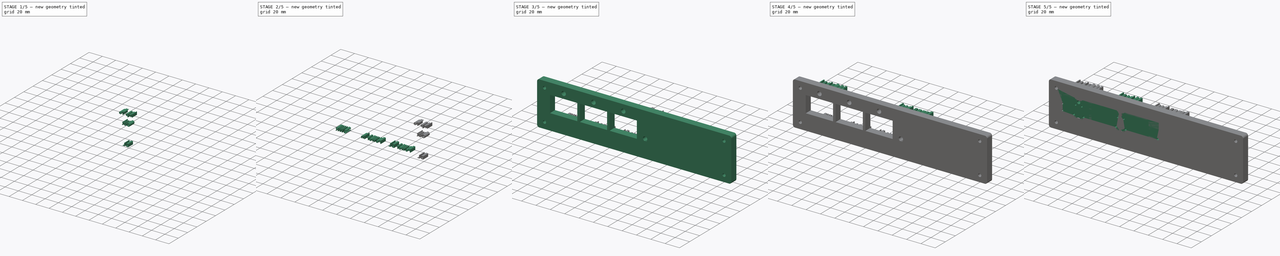
[diagram: build sequence overview — one tinted view per stage of 5, left to right]
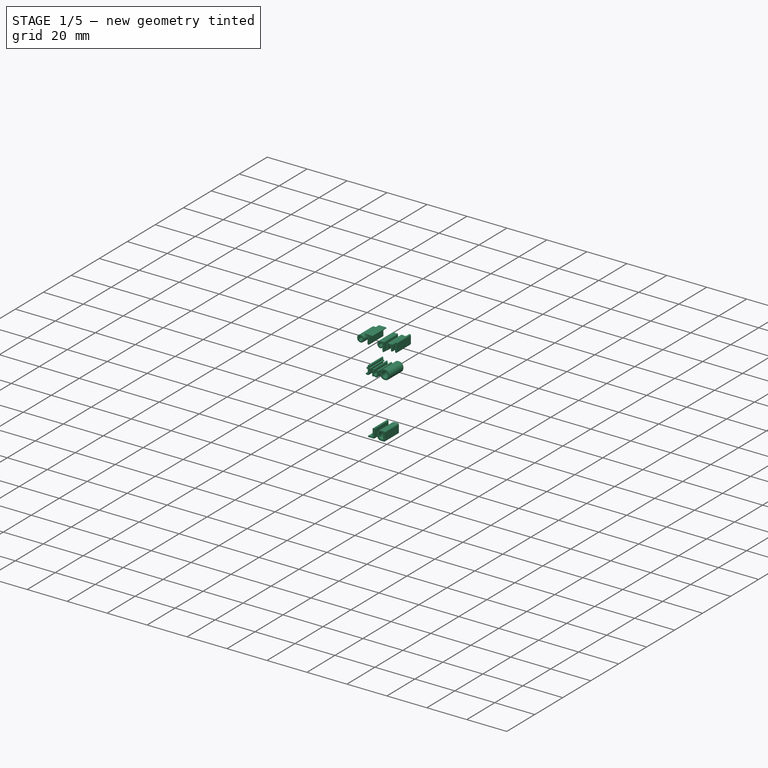
[diagram: stage 1 of 5 — iso view after this stage's code; geometry added in this stage tinted green]
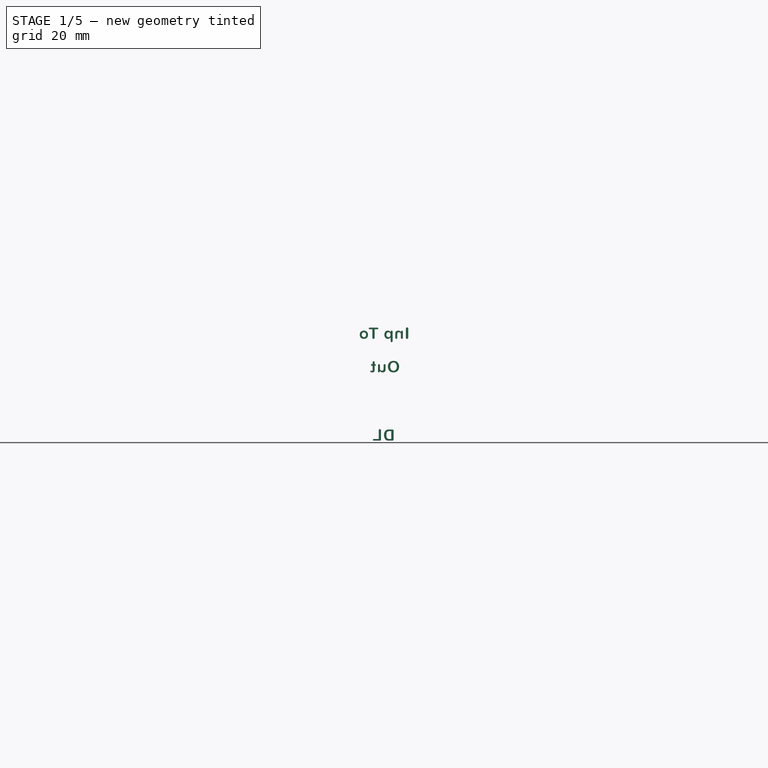
[diagram: stage 1 of 5 — front view after this stage's code; geometry added in this stage tinted green]
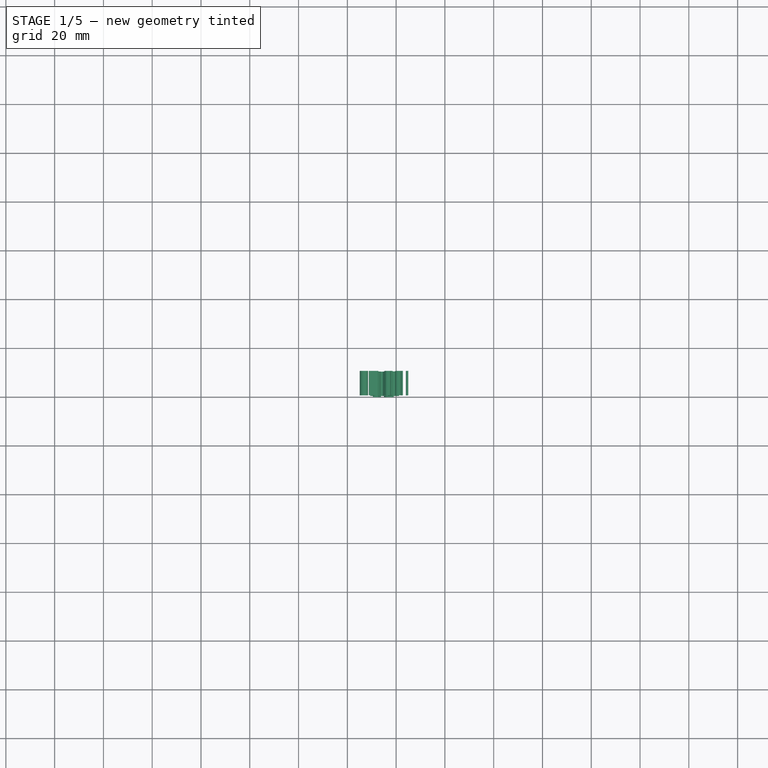
[diagram: stage 1 of 5 — top view after this stage's code; geometry added in this stage tinted green]
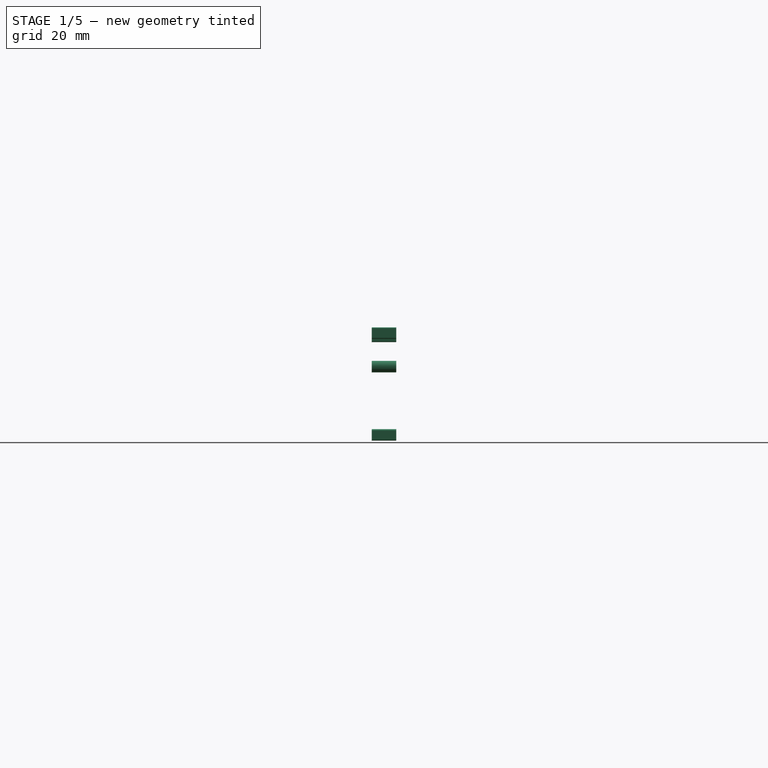
[diagram: stage 1 of 5 — right view after this stage's code; geometry added in this stage tinted green]
FCSTD DOCUMENT  (FreeCAD 0.20R29177 +426 (Git))
Label: RF_InstrumentBox-FrontRearPanel-r00
License: Creative Commons Attribution-NonCommercial-ShareAlike
LicenseURL: http://creativecommons.org/licenses/by-nc-sa/4.0/
objects: Part::Extrusion×14, Part::Part2DObjectPython×13, Sketcher::SketchObject×2, PartDesign::Body×2, App::Part×2, TechDraw::DrawSVGTemplate×1, Part::MultiFuse×1, TechDraw::DrawViewPart×1, TechDraw::DrawPage×1
note: 32 computed .brp shape members not serialized (recipe doc carries the construction recipe); baked Part::Feature solids carry a one-line shape summary decoded from their .brp

FEATURE [Part::Part2DObjectPython] ShapeString010  label="In -> DL"  # Draft 2D object (typed FeaturePython)
  FontFile = <path>
  MakeFace = true
  Placement = pos=(19.5,0,-32) rot=(0,0.707107,0.707107;3.14159rad)
  Size = 5
  String = DL
  Tracking = 0.3
FEATURE [Part::Part2DObjectPython] ShapeString011  label="In -> Out"  # Draft 2D object (typed FeaturePython)
  FontFile = <path>
  MakeFace = true
  Placement = pos=(21.5,0,-4) rot=(0,0.707107,0.707107;3.14159rad)
  Size = 5
  String = Out
  Tracking = 0.3
FEATURE [Part::Extrusion] Extrude011  label="In -> DL001"
  Base = -> ShapeString010
  Dir = (1e-16,1,3e-16)
  DirMode = 2
  FaceMakerClass = Part::FaceMakerBullseye
  LengthFwd = 10
  LengthRev = 0
  Solid = false
  Symmetric = false
FEATURE [Part::Extrusion] Extrude012  label="In -> Out001"
  Base = -> ShapeString011
  Dir = (1e-16,1,0)
  DirMode = 2
  FaceMakerClass = Part::FaceMakerBullseye
  LengthFwd = 10
  LengthRev = 0
  Solid = false
  Symmetric = false
FEATURE [Part::Part2DObjectPython] ShapeString012  label="In"  # Draft 2D object (typed FeaturePython)
  FontFile = <path>
  MakeFace = true
  Placement = pos=(25.5,0,9.75) rot=(0,0.707107,0.707107;3.14159rad)
  Size = 5
  String = Inp To
  Tracking = 0.3
FEATURE [Part::Extrusion] Extrude013  label="In001"
  Base = -> ShapeString012
  Dir = (1e-16,1,0)
  DirMode = 2
  FaceMakerClass = Part::FaceMakerBullseye
  LengthFwd = 10
  LengthRev = 0
  Solid = false
  Symmetric = false
FEATURE [App::Part] Part001  label="Pannello Anteriore Watmetro Rosmetro001"
  Group = -> [Body001,Sketch020,Extrude007,ShapeString007,Extrude008,ShapeString008,Extrude009,ShapeString009,Extrude010,Extrude011,ShapeString011,Extrude012,ShapeString012,ShapeString010,Extrude013]
  Origin = -> Origin002
note: 13 file-system paths scrubbed to <path> (originals preserved in the JSON sidecar)
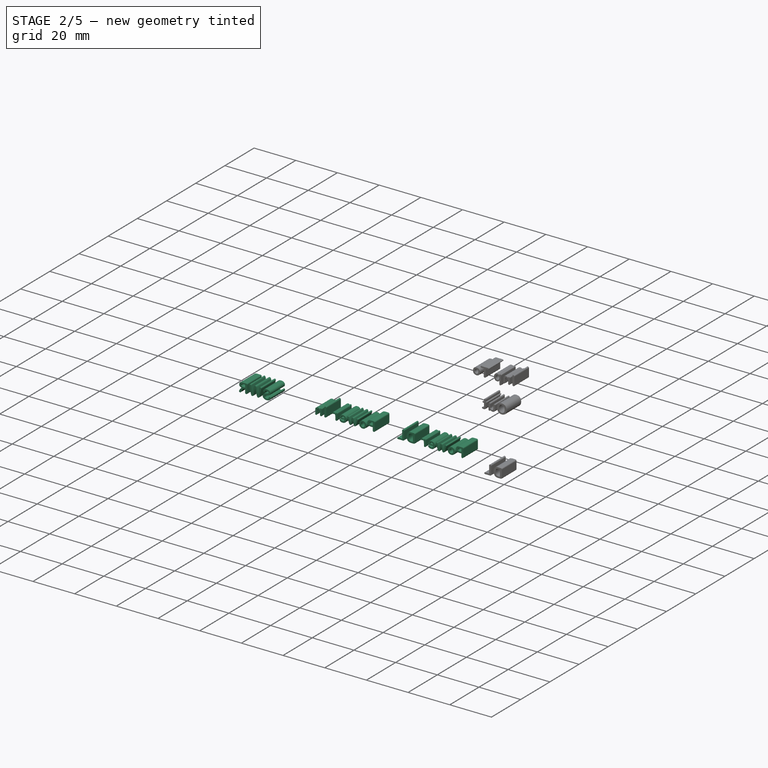
[diagram: stage 2 of 5 — iso view after this stage's code; geometry added in this stage tinted green]
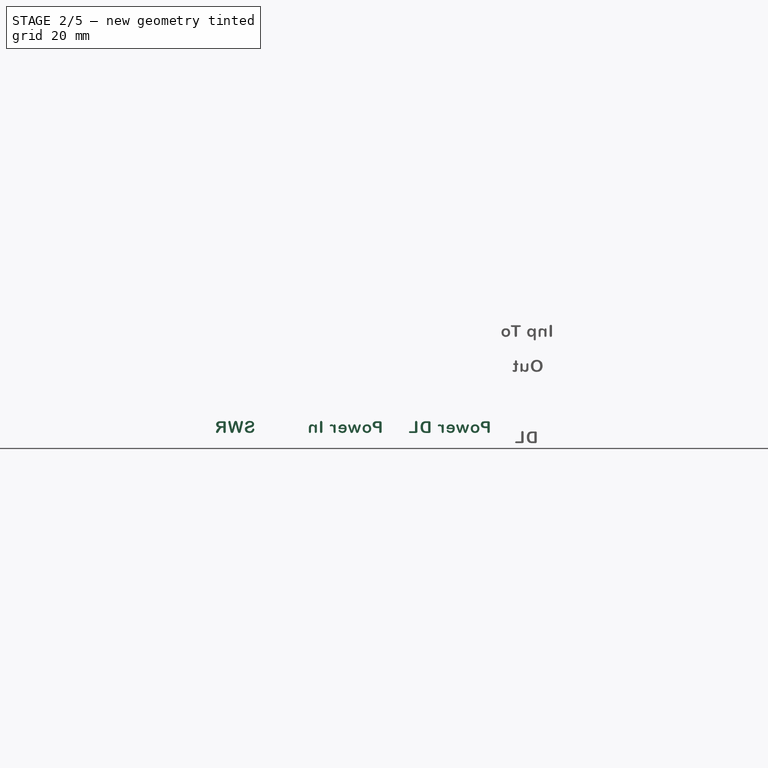
[diagram: stage 2 of 5 — front view after this stage's code; geometry added in this stage tinted green]
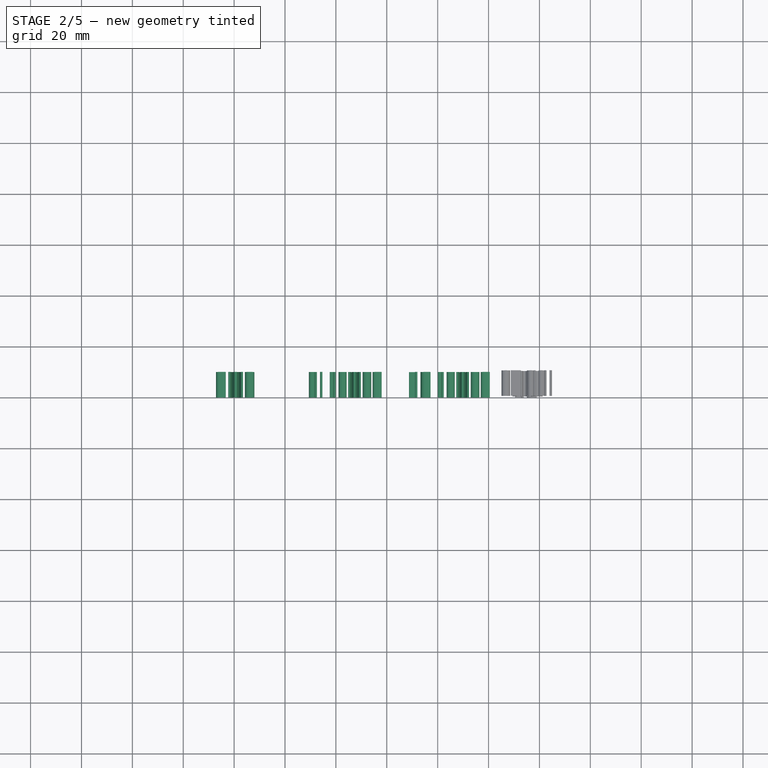
[diagram: stage 2 of 5 — top view after this stage's code; geometry added in this stage tinted green]
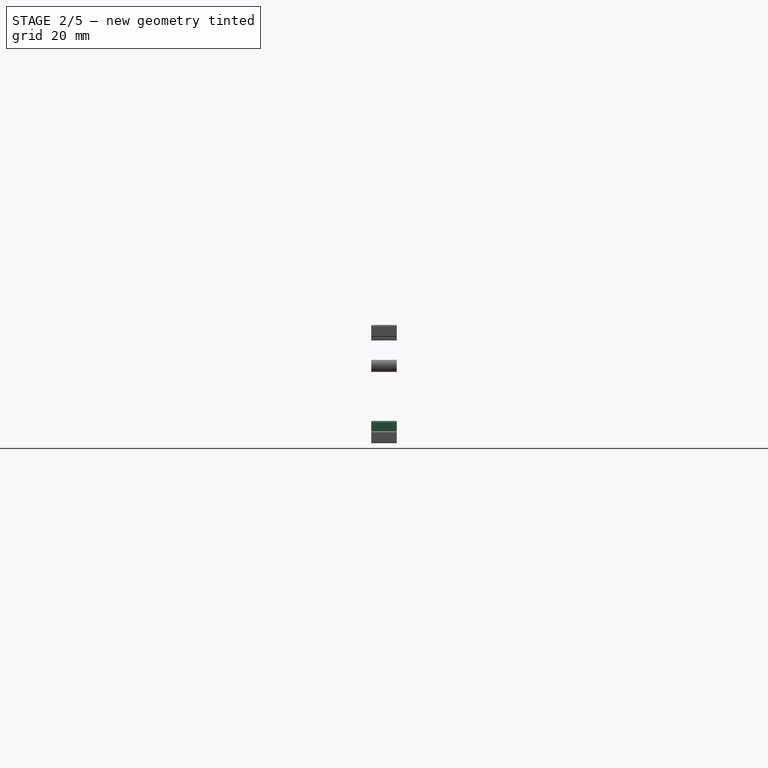
[diagram: stage 2 of 5 — right view after this stage's code; geometry added in this stage tinted green]
FEATURE [Part::Part2DObjectPython] ShapeString007  label="Power In"  # Draft 2D object (typed FeaturePython)
  FontFile = <path>
  MakeFace = true
  Placement = pos=(-41.5,1e-16,-28) rot=(0,0.707107,0.707107;3.14159rad)
  Size = 5
  String = Power In
  Tracking = 0.3
FEATURE [Part::Part2DObjectPython] ShapeString008  label="SWR"  # Draft 2D object (typed FeaturePython)
  FontFile = <path>
  MakeFace = true
  Placement = pos=(-91.75,0,-28) rot=(0,0.707107,0.707107;3.14159rad)
  Size = 5
  String = SWR
  Tracking = 0.3
FEATURE [Part::Part2DObjectPython] ShapeString009  label="Power DL"  # Draft 2D object (typed FeaturePython)
  FontFile = <path>
  MakeFace = true
  Placement = pos=(1,0,-28) rot=(0,0.707107,0.707107;3.14159rad)
  Size = 5
  String = Power DL
  Tracking = 0.3
FEATURE [Part::Extrusion] Extrude008  label="Power In001"
  Base = -> ShapeString007
  Dir = (1e-16,1,0)
  DirMode = 2
  FaceMakerClass = Part::FaceMakerBullseye
  LengthFwd = 10
  LengthRev = 0
  Solid = false
  Symmetric = false
FEATURE [Part::Extrusion] Extrude009  label="SWR001"
  Base = -> ShapeString008
  Dir = (1e-16,1,0)
  DirMode = 2
  FaceMakerClass = Part::FaceMakerBullseye
  LengthFwd = 10
  LengthRev = 0
  Solid = false
  Symmetric = false
FEATURE [Part::Extrusion] Extrude010  label="Power DL001"
  Base = -> ShapeString009
  Dir = (1e-16,1,0)
  DirMode = 2
  FaceMakerClass = Part::FaceMakerBullseye
  LengthFwd = 10
  LengthRev = 0
  Solid = false
  Symmetric = false
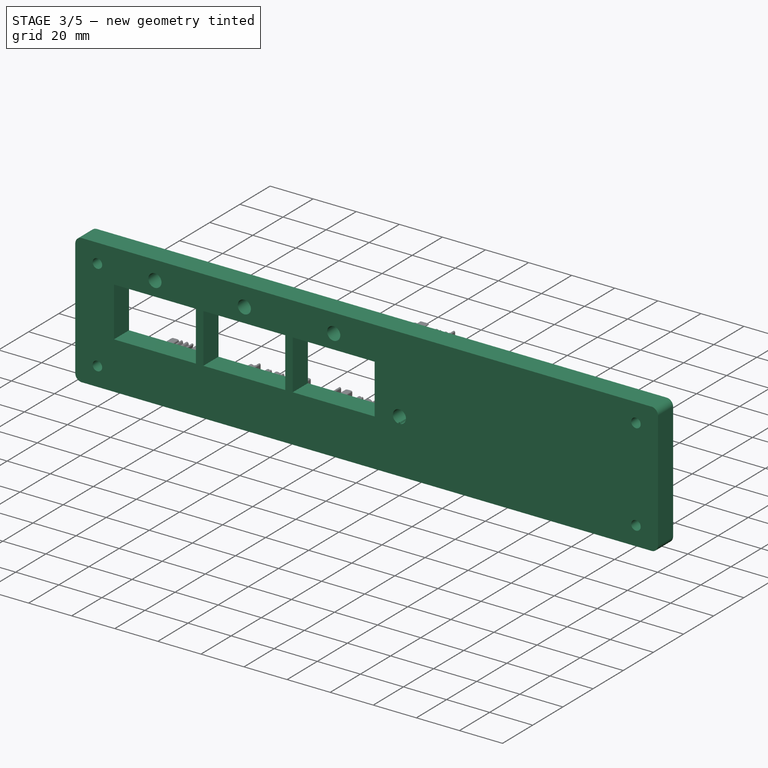
[diagram: stage 3 of 5 — iso view after this stage's code; geometry added in this stage tinted green]
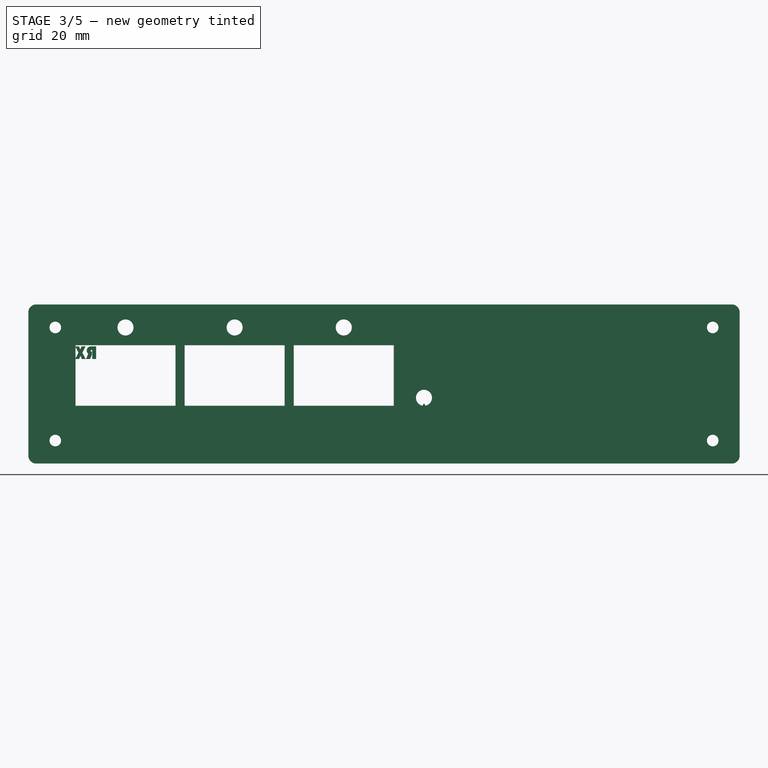
[diagram: stage 3 of 5 — front view after this stage's code; geometry added in this stage tinted green]
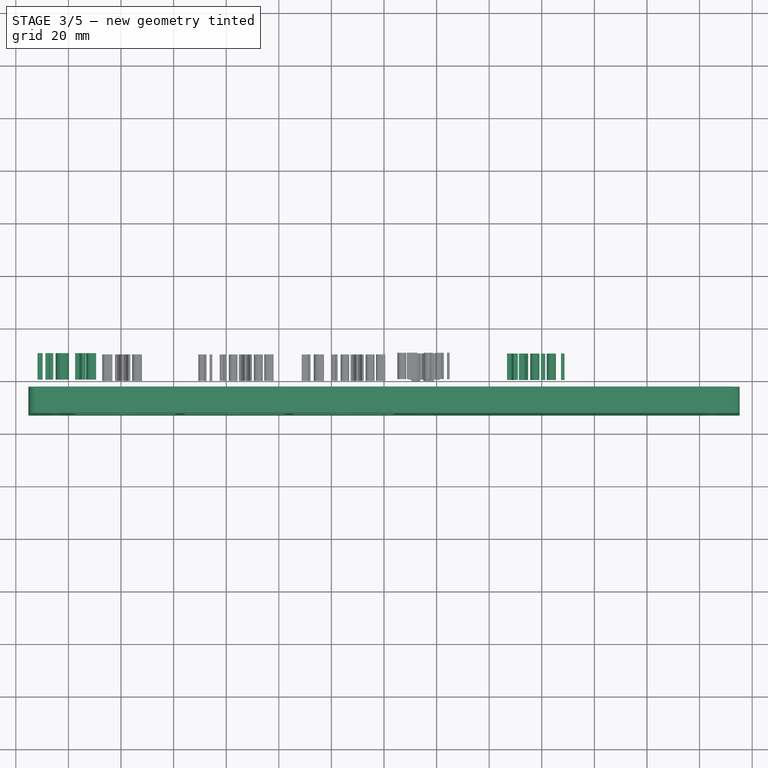
[diagram: stage 3 of 5 — top view after this stage's code; geometry added in this stage tinted green]
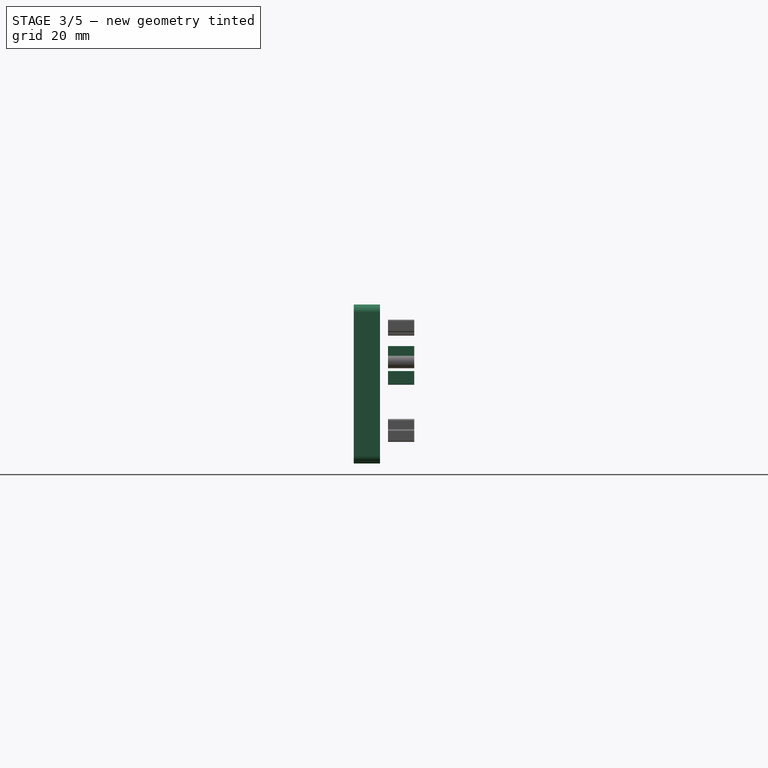
[diagram: stage 3 of 5 — right view after this stage's code; geometry added in this stage tinted green]
FEATURE [PartDesign::Body] Body001  label="Pannello Anteriore Watmetro Rosmetro"
  Origin = -> Origin003
FEATURE [Sketcher::SketchObject] Sketch020  label="PannelloAnterioreWatmetroCaricoFittizio"
  FullyConstrained = false
  Placement = pos=(0,-3,-10) rot=(1,0,0;1.5708rad)
  sketch-geometry (106):
    g0: LineSegment StartX=-132.25 StartY=30.25 StartZ=0 EndX=132.25 EndY=30.25 EndZ=0
    g1: LineSegment StartX=135.25 StartY=27.25 StartZ=0 EndX=135.25 EndY=-27.25 EndZ=0
    g2: LineSegment StartX=132.25 StartY=-30.25 StartZ=0 EndX=-132.25 EndY=-30.25 EndZ=0
    g3: LineSegment StartX=-135.25 StartY=-27.25 StartZ=0 EndX=-135.25 EndY=27.25 EndZ=0
    g4: ArcOfCircle CenterX=-132.25 CenterY=27.25 CenterZ=0 NormalX=0 NormalY=0 NormalZ=1 AngleXU=0 Radius=3 StartAngle=1.5708 EndAngle=3.14159
    g5: ArcOfCircle CenterX=-132.25 CenterY=-27.25 CenterZ=0 NormalX=0 NormalY=0 NormalZ=1 AngleXU=0 Radius=3 StartAngle=3.14159 EndAngle=4.71239
    g6: ArcOfCircle CenterX=132.25 CenterY=-27.25 CenterZ=0 NormalX=0 NormalY=0 NormalZ=1 AngleXU=0 Radius=3 StartAngle=4.71239 EndAngle=6.28319
    g7: ArcOfCircle CenterX=132.25 CenterY=27.25 CenterZ=0 NormalX=0 NormalY=0 NormalZ=1 AngleXU=0 Radius=3 StartAngle=0 EndAngle=1.5708
    g8: Circle CenterX=-125 CenterY=21.5 CenterZ=0 NormalX=0 NormalY=0 NormalZ=1 AngleXU=0 Radius=2.2
    g9: Circle CenterX=-125 CenterY=-21.5 CenterZ=0 NormalX=0 NormalY=0 NormalZ=1 AngleXU=0 Radius=2.2
    g10: Circle CenterX=125 CenterY=-21.5 CenterZ=0 NormalX=0 NormalY=0 NormalZ=1 AngleXU=0 Radius=2.2
    g11: Circle CenterX=125 CenterY=21.5 CenterZ=0 NormalX=0 NormalY=0 NormalZ=1 AngleXU=0 Radius=2.2
    g12: LineSegment StartX=-125 StartY=21.5 StartZ=0 EndX=125 EndY=21.5 EndZ=0
    g13: LineSegment StartX=125 StartY=21.5 StartZ=0 EndX=125 EndY=-21.5 EndZ=0
    g14: LineSegment StartX=125 StartY=-21.5 StartZ=0 EndX=-125 EndY=-21.5 EndZ=0
    g15: LineSegment StartX=-125 StartY=-21.5 StartZ=0 EndX=-125 EndY=21.5 EndZ=0
    g16: LineSegment StartX=-117.3 StartY=14.75 StartZ=0 EndX=-79.3 EndY=14.75 EndZ=0
    g17: LineSegment StartX=-79.3 StartY=14.75 StartZ=0 EndX=-79.3 EndY=-8.25 EndZ=0
    g18: LineSegment StartX=-79.3 StartY=-8.25 StartZ=0 EndX=-117.3 EndY=-8.25 EndZ=0
    g19: LineSegment StartX=-118.8 StartY=16.25 StartZ=0 EndX=-77.8 EndY=16.25 EndZ=0
    g20: LineSegment StartX=-77.8 StartY=16.25 StartZ=0 EndX=-77.8 EndY=-24.75 EndZ=0
    g21: LineSegment StartX=-77.8 StartY=-24.75 StartZ=0 EndX=-118.8 EndY=-24.75 EndZ=0
    g22: LineSegment StartX=-118.8 StartY=-24.75 StartZ=0 EndX=-118.8 EndY=16.25 EndZ=0
    g23: LineSegment StartX=-117.3 StartY=-8.25 StartZ=0 EndX=-118.8 EndY=-8.25 EndZ=0
    g24: LineSegment StartX=-79.3 StartY=-8.25 StartZ=0 EndX=-77.8 EndY=-8.25 EndZ=0
    g25: LineSegment StartX=-79.3 StartY=14.75 StartZ=0 EndX=-79.3 EndY=16.25 EndZ=0
    g26: LineSegment StartX=-89.8 StartY=-13.75 StartZ=0 EndX=-89.8 EndY=-22.25 EndZ=0
    g27: LineSegment StartX=-89.8 StartY=-22.25 StartZ=0 EndX=-106.8 EndY=-22.25 EndZ=0
    g28: LineSegment StartX=-106.8 StartY=-22.25 StartZ=0 EndX=-106.8 EndY=-13.75 EndZ=0
    g29: ArcOfCircle CenterX=-98.3 CenterY=-13.75 CenterZ=0 NormalX=0 NormalY=0 NormalZ=1 AngleXU=0 Radius=8.5 StartAngle=0 EndAngle=3.14159
    g30: LineSegment StartX=-106.8 StartY=-5.25 StartZ=0 EndX=-98.3 EndY=-5.25 EndZ=0
    g31: LineSegment StartX=-106.8 StartY=-13.75 StartZ=0 EndX=-106.8 EndY=-5.25 EndZ=0
    g32: LineSegment StartX=-106.8 StartY=-13.75 StartZ=0 EndX=-118.8 EndY=-13.75 EndZ=0
    g33: LineSegment StartX=-89.8 StartY=-13.75 StartZ=0 EndX=-77.8 EndY=-13.75 EndZ=0
    g34: LineSegment StartX=-117.3 StartY=-8.25 StartZ=0 EndX=-117.3 EndY=3.25 EndZ=0
    g35: LineSegment StartX=-117.3 StartY=3.25 StartZ=0 EndX=-117.3 EndY=14.75 EndZ=0
    g36: LineSegment StartX=-75.8 StartY=14.75 StartZ=0 EndX=-37.8 EndY=14.75 EndZ=0
    g37: LineSegment StartX=-37.8 StartY=14.75 StartZ=0 EndX=-37.8 EndY=-8.25 EndZ=0
    g38: LineSegment StartX=-37.8 StartY=-8.25 StartZ=0 EndX=-75.8 EndY=-8.25 EndZ=0
    g39: LineSegment StartX=-77.3 StartY=16.25 StartZ=0 EndX=-36.3 EndY=16.25 EndZ=0
    g40: LineSegment StartX=-36.3 StartY=16.25 StartZ=0 EndX=-36.3 EndY=-24.75 EndZ=0
    g41: LineSegment StartX=-36.3 StartY=-24.75 StartZ=0 EndX=-77.3 EndY=-24.75 EndZ=0
    g42: LineSegment StartX=-77.3 StartY=-24.75 StartZ=0 EndX=-77.3 EndY=16.25 EndZ=0
    g43: LineSegment StartX=-75.8 StartY=-8.25 StartZ=0 EndX=-77.3 EndY=-8.25 EndZ=0
    g44: LineSegment StartX=-37.8 StartY=-8.25 StartZ=0 EndX=-36.3 EndY=-8.25 EndZ=0
    g45: LineSegment StartX=-37.8 StartY=14.75 StartZ=0 EndX=-37.8 EndY=16.25 EndZ=0
    g46: LineSegment StartX=-48.3 StartY=-13.75 StartZ=0 EndX=-48.3 EndY=-22.25 EndZ=0
    g47: LineSegment StartX=-48.3 StartY=-22.25 StartZ=0 EndX=-65.3 EndY=-22.25 EndZ=0
    g48: LineSegment StartX=-65.3 StartY=-22.25 StartZ=0 EndX=-65.3 EndY=-13.75 EndZ=0
    g49: ArcOfCircle CenterX=-56.8 CenterY=-13.75 CenterZ=0 NormalX=0 NormalY=0 NormalZ=1 AngleXU=0 Radius=8.5 StartAngle=1e-16 EndAngle=3.14159
    g50: LineSegment StartX=-65.3 StartY=-5.25 StartZ=0 EndX=-56.8 EndY=-5.25 EndZ=0
    g51: LineSegment StartX=-65.3 StartY=-13.75 StartZ=0 EndX=-65.3 EndY=-5.25 EndZ=0
    g52: LineSegment StartX=-65.3 StartY=-13.75 StartZ=0 EndX=-77.3 EndY=-13.75 EndZ=0
    g53: LineSegment StartX=-48.3 StartY=-13.75 StartZ=0 EndX=-36.3 EndY=-13.75 EndZ=0
    g54: LineSegment StartX=-75.8 StartY=-8.25 StartZ=0 EndX=-75.8 EndY=3.25 EndZ=0
    g55: LineSegment StartX=-75.8 StartY=3.25 StartZ=0 EndX=-75.8 EndY=14.75 EndZ=0
    g56: LineSegment StartX=-34.3 StartY=14.75 StartZ=0 EndX=3.7 EndY=14.75 EndZ=0
    g57: LineSegment StartX=3.7 StartY=14.75 StartZ=0 EndX=3.7 EndY=-8.25 EndZ=0
    g58: LineSegment StartX=3.7 StartY=-8.25 StartZ=0 EndX=-34.3 EndY=-8.25 EndZ=0
    g59: LineSegment StartX=-35.8 StartY=16.25 StartZ=0 EndX=5.2 EndY=16.25 EndZ=0
    g60: LineSegment StartX=5.2 StartY=16.25 StartZ=0 EndX=5.2 EndY=-24.75 EndZ=0
    g61: LineSegment StartX=5.2 StartY=-24.75 StartZ=0 EndX=-35.8 EndY=-24.75 EndZ=0
    g62: LineSegment StartX=-35.8 StartY=-24.75 StartZ=0 EndX=-35.8 EndY=16.25 EndZ=0
    g63: LineSegment StartX=-34.3 StartY=-8.25 StartZ=0 EndX=-35.8 EndY=-8.25 EndZ=0
    g64: LineSegment StartX=3.7 StartY=-8.25 StartZ=0 EndX=5.2 EndY=-8.25 EndZ=0
    g65: LineSegment StartX=3.7 StartY=14.75 StartZ=0 EndX=3.7 EndY=16.25 EndZ=0
    g66: LineSegment StartX=-6.8 StartY=-13.75 StartZ=0 EndX=-6.8 EndY=-22.25 EndZ=0
    g67: LineSegment StartX=-6.8 StartY=-22.25 StartZ=0 EndX=-23.8 EndY=-22.25 EndZ=0
    g68: LineSegment StartX=-23.8 StartY=-22.25 StartZ=0 EndX=-23.8 EndY=-13.75 EndZ=0
    g69: ArcOfCircle CenterX=-15.3 CenterY=-13.75 CenterZ=0 NormalX=0 NormalY=0 NormalZ=1 AngleXU=0 Radius=8.5 StartAngle=1e-16 EndAngle=3.14159
    g70: LineSegment StartX=-23.8 StartY=-5.25 StartZ=0 EndX=-15.3 EndY=-5.25 EndZ=0
    g71: LineSegment StartX=-23.8 StartY=-13.75 StartZ=0 EndX=-23.8 EndY=-5.25 EndZ=0
    g72: LineSegment StartX=-23.8 StartY=-13.75 StartZ=0 EndX=-35.8 EndY=-13.75 EndZ=0
    g73: LineSegment StartX=-6.8 StartY=-13.75 StartZ=0 EndX=5.2 EndY=-13.75 EndZ=0
    g74: LineSegment StartX=-34.3 StartY=-8.25 StartZ=0 EndX=-34.3 EndY=3.25 EndZ=0
    g75: LineSegment StartX=-34.3 StartY=3.25 StartZ=0 EndX=-34.3 EndY=14.75 EndZ=0
    g76: LineSegment StartX=-118.8 StartY=-24.75 StartZ=0 EndX=-118.8 EndY=-30.25 EndZ=0
    g77: LineSegment StartX=-77.8 StartY=-24.75 StartZ=0 EndX=-77.3 EndY=-24.75 EndZ=0
    g78: LineSegment StartX=-36.3 StartY=-24.75 StartZ=0 EndX=-35.8 EndY=-24.75 EndZ=0
    g79: LineSegment StartX=-122.8 StartY=21.5 StartZ=0 EndX=-122.8 EndY=-21.5 EndZ=0
    g80: Circle CenterX=-98.3 CenterY=21.5 CenterZ=0 NormalX=0 NormalY=0 NormalZ=1 AngleXU=0 Radius=3.05
    g81: Circle CenterX=-98.3 CenterY=21.5 CenterZ=0 NormalX=0 NormalY=0 NormalZ=1 AngleXU=0 Radius=4
    g82: LineSegment StartX=-98.3 StartY=21.5 StartZ=0 EndX=-98.3 EndY=-5.25 EndZ=0
    g83: Circle CenterX=-56.8 CenterY=21.5 CenterZ=0 NormalX=0 NormalY=0 NormalZ=1 AngleXU=0 Radius=3.05
    g84: Circle CenterX=-56.8 CenterY=21.5 CenterZ=0 NormalX=0 NormalY=0 NormalZ=1 AngleXU=0 Radius=4
    g85: LineSegment StartX=-56.8 StartY=21.5 StartZ=0 EndX=-56.8 EndY=-5.25 EndZ=0
    g86: Circle CenterX=-15.3 CenterY=21.5 CenterZ=0 NormalX=0 NormalY=0 NormalZ=1 AngleXU=0 Radius=3.05
    g87: Circle CenterX=-15.3 CenterY=21.5 CenterZ=0 NormalX=0 NormalY=0 NormalZ=1 AngleXU=0 Radius=4
    g88: LineSegment StartX=-15.3 StartY=21.5 StartZ=0 EndX=-15.3 EndY=-5.25 EndZ=0
    g89: ArcOfCircle CenterX=15.2 CenterY=-5.24126 CenterZ=0 NormalX=0 NormalY=0 NormalZ=1 AngleXU=0 Radius=3.05 StartAngle=4.87707 EndAngle=10.8309
    g90: LineSegment StartX=14.7 StartY=-8.25 StartZ=0 EndX=15.2 EndY=-8.25 EndZ=0
    g91: LineSegment StartX=15.2 StartY=-8.25 StartZ=0 EndX=15.7 EndY=-8.25 EndZ=0
    g92: LineSegment StartX=15.2 StartY=-5.24126 StartZ=0 EndX=15.2 EndY=-8.25 EndZ=0
    g93: LineSegment StartX=14.95 StartY=-7.55 StartZ=0 EndX=14.7 EndY=-8.25 EndZ=0
    g94: LineSegment StartX=15.45 StartY=-7.55 StartZ=0 EndX=15.7 EndY=-8.25 EndZ=0
    g95: LineSegment StartX=14.95 StartY=-7.55 StartZ=0 EndX=15.2 EndY=-7.55 EndZ=0
    g96: LineSegment StartX=15.2 StartY=-7.55 StartZ=0 EndX=15.45 EndY=-7.55 EndZ=0
    g97: LineSegment StartX=19.7 StartY=-12.2413 StartZ=0 EndX=10.7 EndY=-12.2413 EndZ=0
    g98: LineSegment StartX=10.7 StartY=-12.2413 StartZ=0 EndX=10.7 EndY=1.75874 EndZ=0
    g99: LineSegment StartX=10.7 StartY=1.75874 StartZ=0 EndX=15.2 EndY=1.75874 EndZ=0
    g100: LineSegment StartX=15.2 StartY=1.75874 StartZ=0 EndX=19.7 EndY=1.75874 EndZ=0
    g101: LineSegment StartX=19.7 StartY=1.75874 StartZ=0 EndX=19.7 EndY=-5.24126 EndZ=0
    g102: LineSegment StartX=19.7 StartY=-5.24126 StartZ=0 EndX=19.7 EndY=-12.2413 EndZ=0
    g103: LineSegment StartX=15.2 StartY=1.75874 StartZ=0 EndX=15.2 EndY=-5.24126 EndZ=0
    g104: LineSegment StartX=15.2 StartY=-5.24126 StartZ=0 EndX=19.7 EndY=-5.24126 EndZ=0
    g105: LineSegment StartX=5.2 StartY=-8.25 StartZ=0 EndX=14.7 EndY=-8.25 EndZ=0
  constraints (286):
    c: Horizontal(g0)
    c: Horizontal(g2)
    c: Vertical(g1)
    c: Vertical(g3)
    c: Tangent(g3,g4) = 1.5708
    c: Tangent(g0,g4) = 1.5708
    c: Tangent(g3,g5) = 1.5708
    c: Tangent(g2,g5) = 1.5708
    c: Tangent(g2,g6) = 1.5708
    c: Tangent(g1,g6) = 1.5708
    c: Tangent(g1,g7) = 1.5708
    c: Tangent(g0,g7) = 1.5708
    c: Equal(g6,g5)
    c: Radius(g4) = 3
    c: DistanceY(g2,g0) = 60.5
    c: DistanceX(g3,g1) = 270.5
    c: Symmetric(g0,g2,g-1)
    c: Symmetric(g3,g1,g-2)
    c: Coincident(g12,g13)
    c: Coincident(g14,g15)
    c: Coincident(g15,g12)
    c: Horizontal(g14)
    c: Vertical(g13)
    c: Coincident(g12,g8)
    c: Coincident(g11,g12)
    c: Coincident(g9,g14)
    c: Symmetric(g8,g9,g-1)
    c: Symmetric(g8,g11,g-2)
    c: Equal(g8,g9)
    c: Equal(g9,g10)
    c: Equal(g10,g11)
    c: Radius(g9) = 2.2
    c: DistanceY(g15,g15) = 43
    c: DistanceX(g9,g10) = 250
    c: Coincident(g16,g17)
    c: Coincident(g17,g18)
    c: Coincident(g18,g34)
    c: Coincident(g35,g16)
    c: Horizontal(g16)
    c: Horizontal(g18)
    c: Vertical(g17)
    c: DistanceX(g16,g16) = 38
    c: DistanceY(g17,g16) = 23
    c: Coincident(g19,g20)
    c: Coincident(g20,g21)
    c: Coincident(g21,g22)
    c: Coincident(g22,g19)
    c: Horizontal(g19)
    c: Horizontal(g21)
    c: Vertical(g20)
    c: Vertical(g22)
    c: DistanceX(g19,g19) = 41
    c: Equal(g19,g22)
    c: Coincident(g23,g18)
    c: PointOnObject(g23,g22)
    c: Horizontal(g23)
    c: Coincident(g24,g17)
    c: PointOnObject(g24,g20)
    c: Horizontal(g24)
    c: Equal(g24,g23)
    c: Coincident(g25,g16)
    c: PointOnObject(g25,g19)
    c: Vertical(g25)
    c: Equal(g25,g24)
    c: Coincident(g26,g27)
    c: Coincident(g27,g28)
    c: Horizontal(g27)
    c: Vertical(g26)
    c: Vertical(g28)
    c: DistanceX(g27,g27) = 17
    c: Tangent(g29,g28) = 1.5708
    c: Tangent(g29,g26) = 1.5708
    c: Horizontal(g30)
    c: Tangent(g30,g29) = 1.5708
    c: Coincident(g31,g28)
    c: Coincident(g31,g30)
    c: Vertical(g31)
    c: DistanceY(g27,g30) = 17
    c: Coincident(g32,g28)
    c: PointOnObject(g32,g22)
    c: Horizontal(g32)
    c: Coincident(g33,g26)
    c: PointOnObject(g33,g20)
    c: Horizontal(g33)
    c: Equal(g33,g32)
    c: DistanceY(g20,g26) = 2.5
    c: Coincident(g34,g35)
    c: Vertical(g34)
    c: Vertical(g35)
    c: Equal(g35,g34)
    c: Coincident(g36,g37)
    c: Coincident(g37,g38)
    c: Coincident(g38,g54)
    c: Coincident(g55,g36)
    c: Horizontal(g36)
    c: Horizontal(g38)
    c: Vertical(g37)
    c: Equal(g16,g36) = 38
    c: DistanceY(g37,g36) = 23
    c: Coincident(g39,g40)
    c: Coincident(g40,g41)
    c: Coincident(g41,g42)
    c: Coincident(g42,g39)
    c: Horizontal(g39)
    c: Horizontal(g41)
    c: Vertical(g40)
    c: Vertical(g42)
    c: Equal(g19,g39) = 41
    c: Equal(g39,g42)
    c: Coincident(g43,g38)
    c: PointOnObject(g43,g42)
    c: Horizontal(g43)
    c: Coincident(g44,g37)
    c: PointOnObject(g44,g40)
    c: Horizontal(g44)
    c: Equal(g44,g43)
    c: Coincident(g45,g36)
    c: PointOnObject(g45,g39)
    c: Vertical(g45)
    c: Equal(g45,g44)
    c: Coincident(g46,g47)
    c: Coincident(g47,g48)
    c: Horizontal(g47)
    c: Vertical(g46)
    c: Vertical(g48)
    c: Equal(g27,g47) = 17
    c: Tangent(g49,g48) = 1.5708
    c: Tangent(g49,g46) = 1.5708
    c: Horizontal(g50)
    c: Tangent(g50,g49) = 1.5708
    c: Coincident(g51,g48)
    c: Coincident(g51,g50)
    c: Vertical(g51)
    c: DistanceY(g47,g50) = 17
    c: Coincident(g52,g48)
    c: PointOnObject(g52,g42)
    c: Horizontal(g52)
    c: Coincident(g53,g46)
    c: PointOnObject(g53,g40)
    c: Horizontal(g53)
    c: Equal(g53,g52)
    c: DistanceY(g40,g46) = 2.5
    c: Coincident(g54,g55)
    c: Vertical(g54)
    c: Vertical(g55)
    c: Equal(g55,g54)
    c: Coincident(g56,g57)
    c: Coincident(g57,g58)
    c: Coincident(g58,g74)
    c: Coincident(g75,g56)
    c: Horizontal(g56)
    c: Horizontal(g58)
    c: Vertical(g57)
    c: Equal(g16,g56) = 38
    c: DistanceY(g57,g56) = 23
    c: Coincident(g59,g60)
    c: Coincident(g60,g61)
    c: Coincident(g61,g62)
    c: Coincident(g62,g59)
    c: Horizontal(g59)
    c: Horizontal(g61)
    c: Vertical(g60)
    c: Vertical(g62)
    c: Equal(g19,g59) = 41
    c: Equal(g59,g62)
    c: Coincident(g63,g58)
    c: PointOnObject(g63,g62)
    c: Horizontal(g63)
    c: Coincident(g64,g57)
    c: PointOnObject(g64,g60)
    c: Horizontal(g64)
    c: Equal(g64,g63)
    c: Coincident(g65,g56)
    c: PointOnObject(g65,g59)
    c: Vertical(g65)
    c: Equal(g65,g64)
    c: Coincident(g66,g67)
    c: Coincident(g67,g68)
    c: Horizontal(g67)
    c: Vertical(g66)
    c: Vertical(g68)
    c: Equal(g27,g67) = 17
    c: Tangent(g69,g68) = 1.5708
    c: Tangent(g69,g66) = 1.5708
    c: Horizontal(g70)
    c: Tangent(g70,g69) = 1.5708
    c: Coincident(g71,g68)
    c: Coincident(g71,g70)
    c: Vertical(g71)
    c: DistanceY(g67,g70) = 17
    c: Coincident(g72,g68)
    c: PointOnObject(g72,g62)
    c: Horizontal(g72)
    c: Coincident(g73,g66)
    c: PointOnObject(g73,g60)
    c: Horizontal(g73)
    c: Equal(g73,g72)
    c: DistanceY(g60,g66) = 2.5
    c: Coincident(g74,g75)
    c: Vertical(g74)
    c: Vertical(g75)
    c: Equal(g75,g74)
    c: Coincident(g76,g21)
    c: PointOnObject(g76,g2)
    c: Vertical(g76)
    c: DistanceY(g76,g76) = 5.5
    c: Coincident(g77,g20)
    c: Coincident(g77,g41)
    c: Horizontal(g77)
    c: DistanceX(g77,g77) = 0.5
    c: Coincident(g78,g40)
    c: Coincident(g78,g61)
    c: Horizontal(g78)
    c: Equal(g77,g78)
    c: Tangent(g79,g8) = 1.5708
    c: Tangent(g79,g9) = 1.5708
    c: DistanceX(g3,g8) = 10.25
    c: DistanceX(g79,g76) = 4
    c: Radius(g80) = 3.05
    c: Coincident(g81,g80)
    c: Radius(g81) = 4
    c: PointOnObject(g80,g12)
    c: Coincident(g82,g80)
    c: Coincident(g82,g30)
    c: Vertical(g82)
    c: Equal(g80,g83) = 3.05
    c: Coincident(g84,g83)
    c: Equal(g81,g84) = 4
    c: Coincident(g85,g83)
    c: Vertical(g85)
    c: Coincident(g50,g85)
    c: PointOnObject(g83,g12)
    c: Equal(g80,g86) = 3.05
    c: Coincident(g87,g86)
    c: Equal(g81,g87) = 4
    c: Coincident(g88,g86)
    c: Vertical(g88)
    c: Coincident(g88,g70)
    c: PointOnObject(g86,g12)
    c: Radius(g89) = 3.05
    c: Coincident(g90,g89)
    c: Coincident(g91,g90)
    c: Coincident(g91,g89)
    c: Horizontal(g90)
    c: Horizontal(g91)
    c: Coincident(g92,g90)
    c: Vertical(g92)
    c: Coincident(g93,g89)
    c: Coincident(g94,g89)
    c: DistanceX(g89,g89) = 1
    c: PointOnObject(g95,g92)
    c: Horizontal(g95)
    c: Coincident(g96,g95)
    c: Horizontal(g96)
    c: Coincident(g93,g95)
    c: Coincident(g94,g96)
    c: Coincident(g92,g89)
    c: DistanceX(g93,g94) = 0.5
    c: Equal(g95,g96)
    c: DistanceY(g89,g94) = 0.7
    c: Coincident(g100,g101)
    c: Coincident(g102,g97)
    c: Coincident(g97,g98)
    c: Coincident(g98,g99)
    c: Horizontal(g97)
    c: Vertical(g98)
    c: Coincident(g99,g100)
    c: Horizontal(g99)
    c: Horizontal(g100)
    c: Coincident(g101,g102)
    c: Vertical(g101)
    c: Vertical(g102)
    c: Coincident(g103,g99)
    c: Coincident(g103,g89)
    c: Coincident(g104,g89)
    c: Coincident(g104,g101)
    c: Horizontal(g104)
    c: Vertical(g103)
    c: Equal(g99,g100)
    c: Equal(g101,g102)
    c: DistanceX(g98,g100) = 9
    c: DistanceY(g97,g98) = 14
    c: DistanceX(g59,g89) = 10
    c: Coincident(g105,g64)
    c: Coincident(g105,g89)
    c: Horizontal(g105)
FEATURE [Part::Part2DObjectPython] ShapeString004  label="RF Input001"  # Draft 2D object (typed FeaturePython)
  FontFile = <path>
  MakeFace = true
  Placement = pos=(-21,0,12.5) rot=(0,0.707107,0.707107;3.14159rad)
  Size = 7
  String = RF Input
  Tracking = 0.3
FEATURE [PartDesign::Body] Body  label="Pannello Posteriore Watmetro Rosmetro"
  Group = -> [ShapeString004]
  Origin = -> Origin001
FEATURE [Part::Part2DObjectPython] ShapeString005  label="RX Out"  # Draft 2D object (typed FeaturePython)
  FontFile = <path>
  MakeFace = true
  Placement = pos=(-109,0,-0.5) rot=(0,0.707107,0.707107;3.14159rad)
  Size = 7
  String = RX Out
  Tracking = 0.3
FEATURE [Part::Extrusion] Extrude005  label="RX Out001"
  Base = -> ShapeString005
  Dir = (1e-16,1,0)
  DirMode = 2
  FaceMakerClass = Part::FaceMakerBullseye
  LengthFwd = 10
  LengthRev = 0
  Solid = false
  Symmetric = false
FEATURE [Part::Part2DObjectPython] ShapeString006  label="12-24V"  # Draft 2D object (typed FeaturePython)
  FontFile = <path>
  MakeFace = true
  Placement = pos=(70,0,-10) rot=(0,0.707107,0.707107;3.14159rad)
  Size = 7
  String = 12-24V
  Tracking = 0.3
FEATURE [Part::Extrusion] Extrude006  label="12-24V001"
  Base = -> ShapeString006
  Dir = (1e-16,1,0)
  DirMode = 2
  FaceMakerClass = Part::FaceMakerBullseye
  LengthFwd = 10
  LengthRev = 0
  Solid = false
  Symmetric = false
FEATURE [App::Part] Part  label="Pannello Posteriore Watmetro Rosmetro001"
  Group = -> [Body,Sketch019,Extrude,ShapeString,Extrude001,ShapeString001,Extrude002,ShapeString002,Extrude003,ShapeString003,Extrude004,Fusion]
  Origin = -> Origin
FEATURE [TechDraw::DrawViewPart] View
  CoarseView = false
  Direction = (0,1,0)
  Focus = 100
  HardHidden = false
  IsoCount = 0
  IsoHidden = false
  IsoVisible = false
  LockPosition = false
  Perspective = false
  Rotation = 0
  ScaleType = 0
  SeamHidden = false
  SeamVisible = true
  SmoothHidden = false
  SmoothVisible = true
  Source = -> [Fusion]
  X = 148.5
  XDirection = (-1,0,0)
  Y = 105
FEATURE [TechDraw::DrawPage] Page
  KeepUpdated = true
  NextBalloonIndex = 1
  ProjectionType = 0
  Template = -> Template
  Views = -> [View]
FEATURE [Part::Extrusion] Extrude007  label="PannelloAnterioreWatmetroCaricoFittizio001"
  Base = -> Sketch020
  Dir = (0,-1,2e-16)
  DirMode = 2
  FaceMakerClass = Part::FaceMakerBullseye
  LengthFwd = 10
  LengthRev = 0
  Solid = true
  Symmetric = false
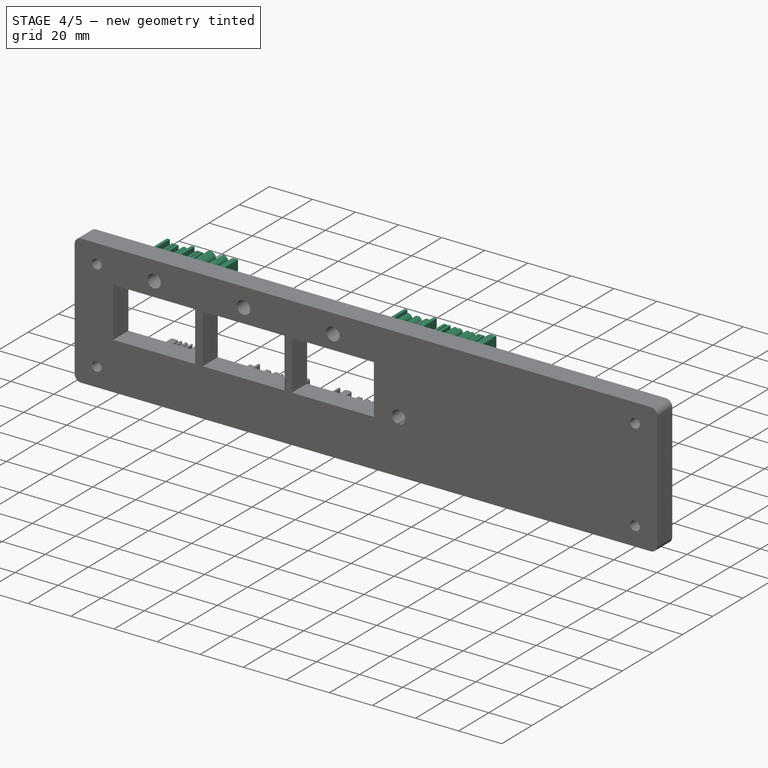
[diagram: stage 4 of 5 — iso view after this stage's code; geometry added in this stage tinted green]
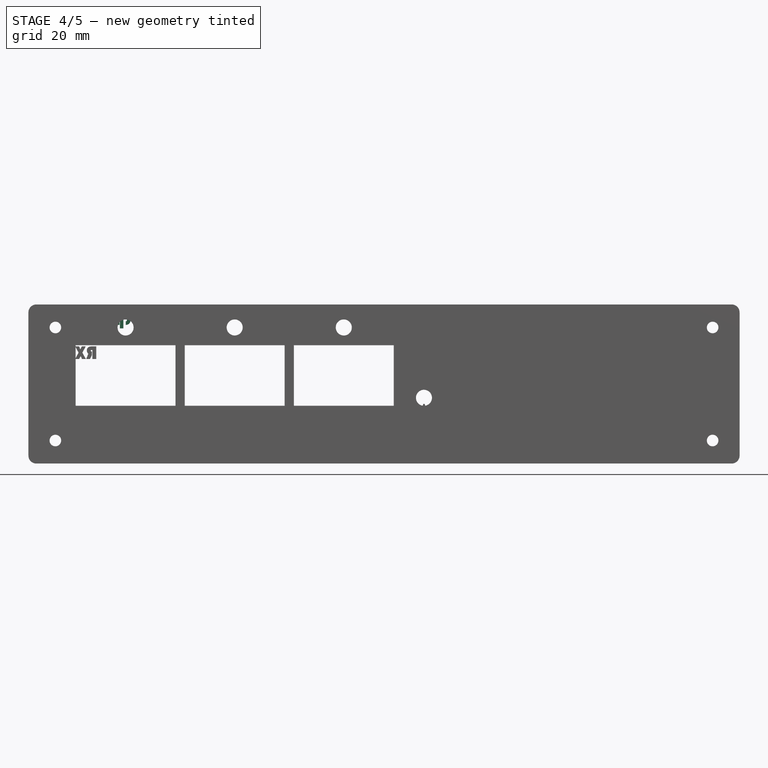
[diagram: stage 4 of 5 — front view after this stage's code; geometry added in this stage tinted green]
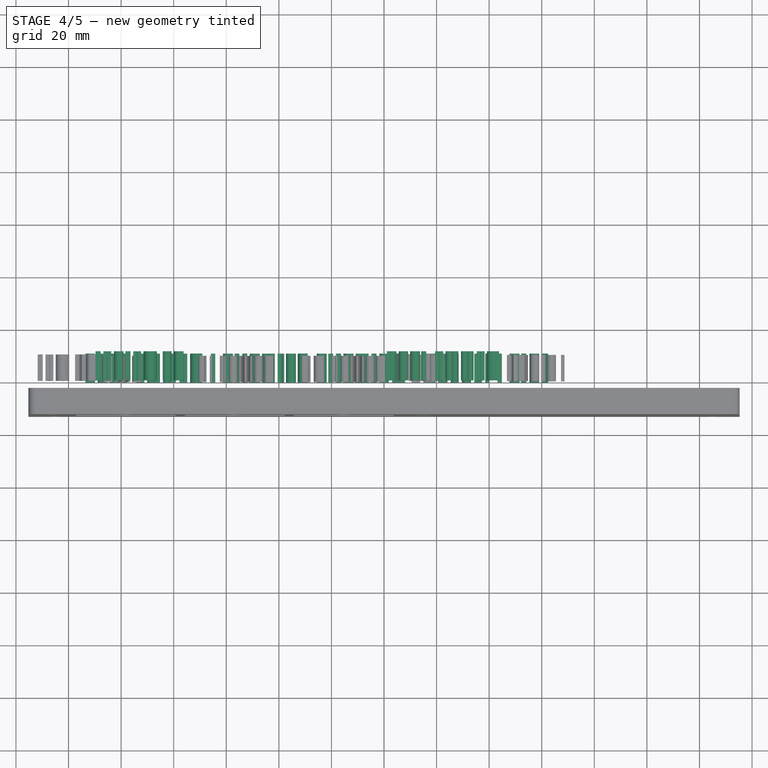
[diagram: stage 4 of 5 — top view after this stage's code; geometry added in this stage tinted green]
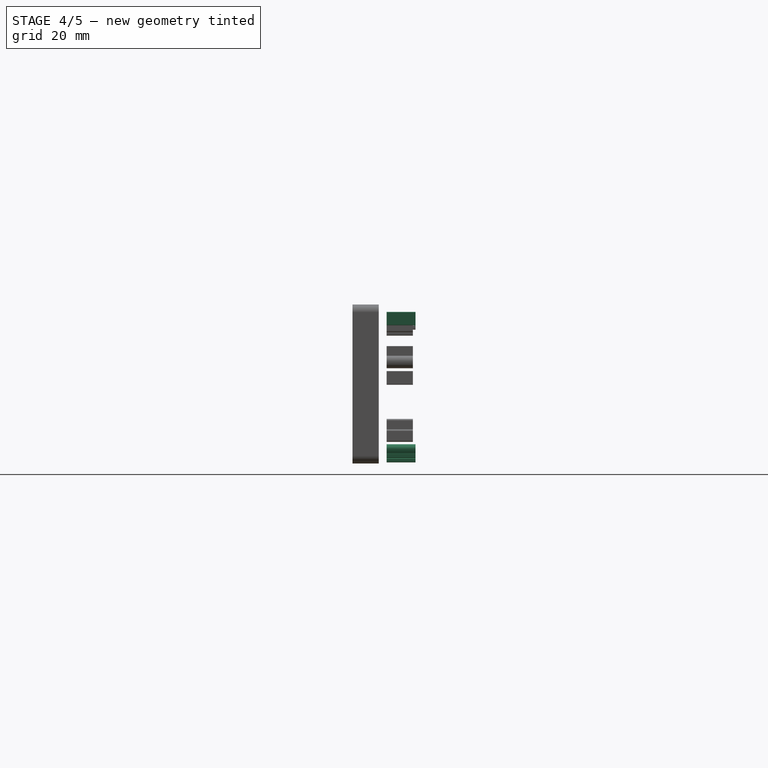
[diagram: stage 4 of 5 — right view after this stage's code; geometry added in this stage tinted green]
FEATURE [Part::Extrusion] Extrude002  label="DummyLoad"
  Base = -> ShapeString001
  Dir = (0,1,-2e-16)
  DirMode = 2
  FaceMakerClass = Part::FaceMakerBullseye
  LengthFwd = 11
  LengthRev = 0
  Solid = true
  Symmetric = false
FEATURE [Part::Extrusion] Extrude003  label="RFOut"
  Base = -> ShapeString002
  Dir = (1e-16,1,0)
  DirMode = 2
  FaceMakerClass = Part::FaceMakerBullseye
  LengthFwd = 11
  LengthRev = 0
  Solid = true
  Symmetric = false
FEATURE [Part::Extrusion] Extrude004  label="SaLe iu0ndo001"
  Base = -> ShapeString003
  Dir = (1e-16,1,0)
  DirMode = 2
  FaceMakerClass = Part::FaceMakerBullseye
  LengthFwd = 11
  LengthRev = 0
  Solid = true
  Symmetric = false
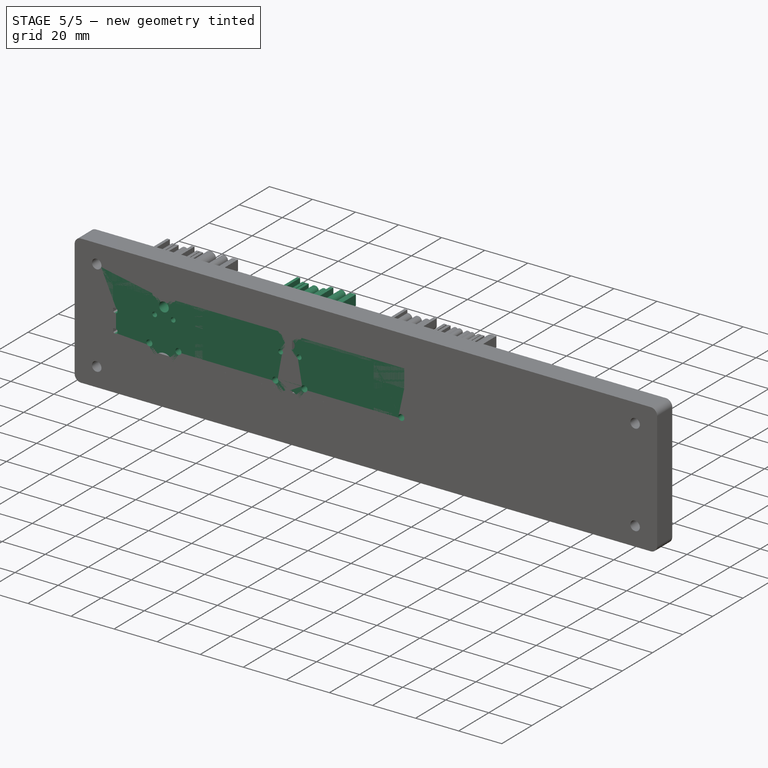
[diagram: stage 5 of 5 — iso view after this stage's code; geometry added in this stage tinted green]
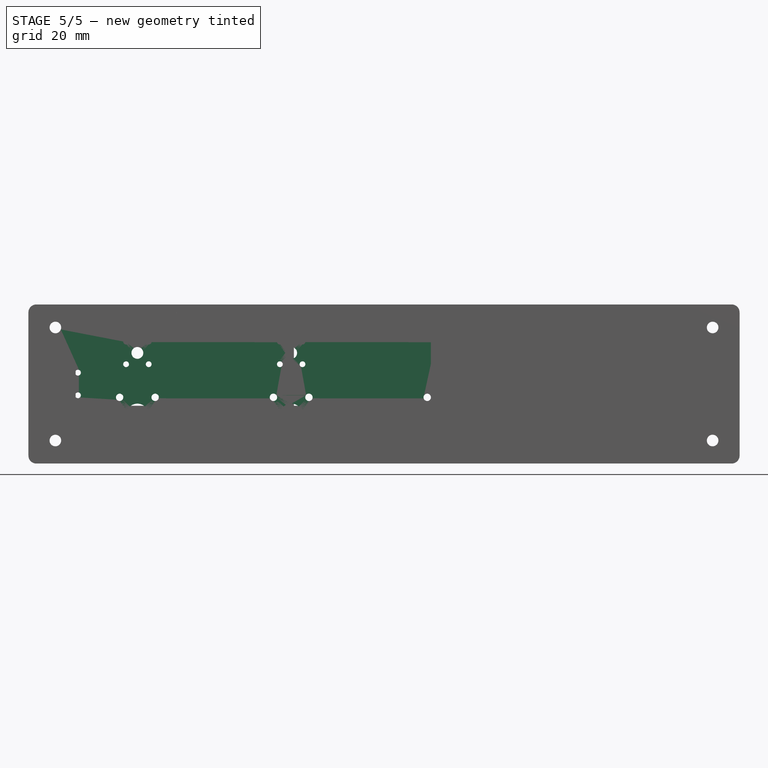
[diagram: stage 5 of 5 — front view after this stage's code; geometry added in this stage tinted green]
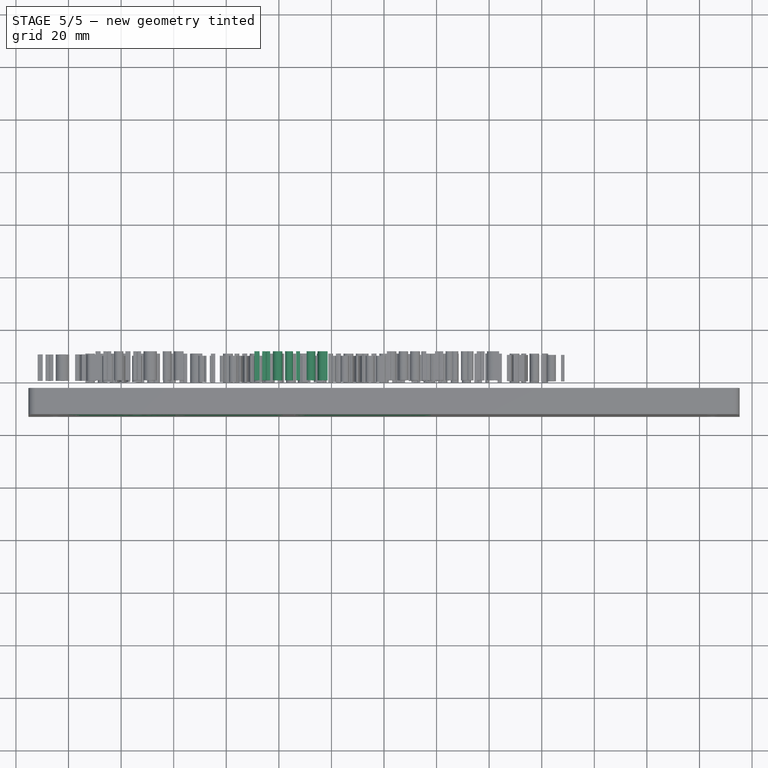
[diagram: stage 5 of 5 — top view after this stage's code; geometry added in this stage tinted green]
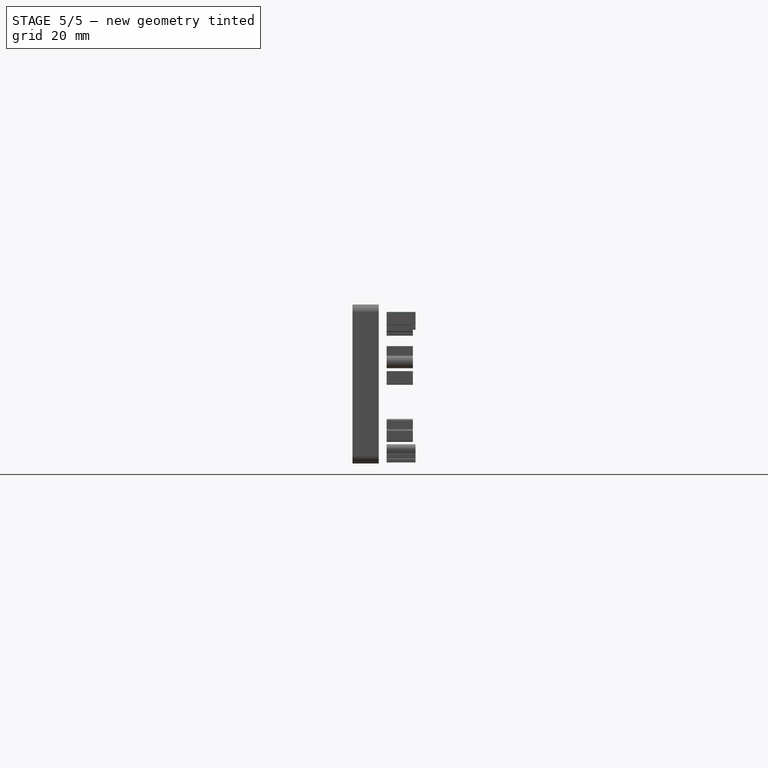
[diagram: stage 5 of 5 — right view after this stage's code; geometry added in this stage tinted green]
FEATURE [Sketcher::SketchObject] Sketch019  label="PannelloPosterioreWatmetroCaricoFittizio"
  FullyConstrained = true
  Placement = pos=(0,-3,-10) rot=(1,0,0;1.5708rad)
  sketch-geometry (223):
    g0: LineSegment StartX=-100.559 StartY=-2.575 StartZ=0 EndX=-87.0588 EndY=-2.575 EndZ=0
    g1: LineSegment StartX=-84.5588 StartY=-5.075 StartZ=0 EndX=-84.5588 EndY=-18.575 EndZ=0
    g2: LineSegment StartX=-87.0588 StartY=-21.075 StartZ=0 EndX=-100.559 EndY=-21.075 EndZ=0
    g3: LineSegment StartX=-103.059 StartY=-18.575 StartZ=0 EndX=-103.059 EndY=-5.075 EndZ=0
    g4: ArcOfCircle CenterX=-100.559 CenterY=-5.075 CenterZ=0 NormalX=0 NormalY=0 NormalZ=1 AngleXU=0 Radius=2.5 StartAngle=1.5708 EndAngle=3.14159
    g5: ArcOfCircle CenterX=-87.0588 CenterY=-5.075 CenterZ=0 NormalX=0 NormalY=0 NormalZ=1 AngleXU=0 Radius=2.5 StartAngle=0 EndAngle=1.5708
    g6: ArcOfCircle CenterX=-87.0588 CenterY=-18.575 CenterZ=0 NormalX=0 NormalY=0 NormalZ=1 AngleXU=0 Radius=2.5 StartAngle=4.71239 EndAngle=6.28319
    g7: ArcOfCircle CenterX=-100.559 CenterY=-18.575 CenterZ=0 NormalX=0 NormalY=0 NormalZ=1 AngleXU=0 Radius=2.5 StartAngle=3.14159 EndAngle=4.71239
    g8: Circle CenterX=-100.559 CenterY=-5.075 CenterZ=0 NormalX=0 NormalY=0 NormalZ=1 AngleXU=0 Radius=1.4
    g9: Circle CenterX=-87.0588 CenterY=-5.075 CenterZ=0 NormalX=0 NormalY=0 NormalZ=1 AngleXU=0 Radius=1.4
    g10: Circle CenterX=-87.0588 CenterY=-18.575 CenterZ=0 NormalX=0 NormalY=0 NormalZ=1 AngleXU=0 Radius=1.4
    g11: Circle CenterX=-100.559 CenterY=-18.575 CenterZ=0 NormalX=0 NormalY=0 NormalZ=1 AngleXU=0 Radius=1.4
    g12: Circle CenterX=-93.8088 CenterY=-11.825 CenterZ=0 NormalX=0 NormalY=0 NormalZ=1 AngleXU=0 Radius=4.35
    g13: LineSegment StartX=-100.559 StartY=-5.075 StartZ=0 EndX=-93.8088 EndY=-11.825 EndZ=0
    g14: LineSegment StartX=-93.8088 StartY=-11.825 StartZ=0 EndX=-87.0588 EndY=-18.575 EndZ=0
    g15: LineSegment StartX=-93.8088 StartY=-11.825 StartZ=0 EndX=-87.0588 EndY=-5.075 EndZ=0
    g16: LineSegment StartX=-93.8088 StartY=-11.825 StartZ=0 EndX=-100.559 EndY=-18.575 EndZ=0
    g17: LineSegment StartX=-98.1088 StartY=18.225 StartZ=0 EndX=-89.5088 EndY=18.225 EndZ=0
    g18: LineSegment StartX=-87.4088 StartY=16.125 StartZ=0 EndX=-87.4088 EndY=7.525 EndZ=0
    g19: LineSegment StartX=-89.5088 StartY=5.425 StartZ=0 EndX=-98.1088 EndY=5.425 EndZ=0
    g20: LineSegment StartX=-100.209 StartY=7.525 StartZ=0 EndX=-100.209 EndY=16.125 EndZ=0
    g21: ArcOfCircle CenterX=-98.1088 CenterY=16.125 CenterZ=0 NormalX=0 NormalY=0 NormalZ=1 AngleXU=0 Radius=2.1 StartAngle=1.5708 EndAngle=3.14159
    g22: ArcOfCircle CenterX=-89.5088 CenterY=16.125 CenterZ=0 NormalX=0 NormalY=0 NormalZ=1 AngleXU=0 Radius=2.1 StartAngle=0 EndAngle=1.5708
    g23: ArcOfCircle CenterX=-89.5088 CenterY=7.525 CenterZ=0 NormalX=0 NormalY=0 NormalZ=1 AngleXU=0 Radius=2.1 StartAngle=4.71239 EndAngle=6.28319
    g24: ArcOfCircle CenterX=-98.1088 CenterY=7.525 CenterZ=0 NormalX=0 NormalY=0 NormalZ=1 AngleXU=0 Radius=2.1 StartAngle=3.14159 EndAngle=4.71239
    g25: Circle CenterX=-93.8088 CenterY=11.825 CenterZ=0 NormalX=0 NormalY=0 NormalZ=1 AngleXU=0 Radius=2.25
    g26: Circle CenterX=-98.1088 CenterY=16.125 CenterZ=0 NormalX=0 NormalY=0 NormalZ=1 AngleXU=0 Radius=1.1
    g27: Circle CenterX=-89.5088 CenterY=16.125 CenterZ=0 NormalX=0 NormalY=0 NormalZ=1 AngleXU=0 Radius=1.1
    g28: Circle CenterX=-89.5088 CenterY=7.525 CenterZ=0 NormalX=0 NormalY=0 NormalZ=1 AngleXU=0 Radius=1.1
    g29: Circle CenterX=-98.1088 CenterY=7.525 CenterZ=0 NormalX=0 NormalY=0 NormalZ=1 AngleXU=0 Radius=1.1
    g30: LineSegment StartX=-98.1088 StartY=16.125 StartZ=0 EndX=-93.8088 EndY=11.825 EndZ=0
    g31: LineSegment StartX=-93.8088 StartY=11.825 StartZ=0 EndX=-89.5088 EndY=7.525 EndZ=0
    g32: LineSegment StartX=-98.1088 StartY=7.525 StartZ=0 EndX=-93.8088 EndY=11.825 EndZ=0
    g33: LineSegment StartX=-93.8088 StartY=11.825 StartZ=0 EndX=-89.5088 EndY=16.125 EndZ=0
    g34: LineSegment StartX=73.0457 StartY=-11.5 StartZ=0 EndX=84.5229 EndY=-0.35 EndZ=0
    g35: LineSegment StartX=113.523 StartY=-0.35 StartZ=0 EndX=125 EndY=-11.5 EndZ=0
    g36: LineSegment StartX=125 StartY=-11.5 StartZ=0 EndX=113.523 EndY=-22.65 EndZ=0
    g37: LineSegment StartX=113.523 StartY=-22.65 StartZ=0 EndX=84.5229 EndY=-22.65 EndZ=0
    g38: LineSegment StartX=84.5229 StartY=-22.65 StartZ=0 EndX=73.0457 EndY=-11.5 EndZ=0
    g39: LineSegment StartX=84.5229 StartY=-0.35 StartZ=0 EndX=84.5229 EndY=-22.65 EndZ=0
    g40: LineSegment StartX=113.523 StartY=-0.35 StartZ=0 EndX=113.523 EndY=-22.65 EndZ=0
    g41: LineSegment StartX=125 StartY=-11.5 StartZ=0 EndX=119.023 EndY=-11.5 EndZ=0
    g42: LineSegment StartX=79.0229 StartY=-11.5 StartZ=0 EndX=73.0457 EndY=-11.5 EndZ=0
    g43: Circle CenterX=79.0229 CenterY=-11.5 CenterZ=0 NormalX=0 NormalY=0 NormalZ=1 AngleXU=0 Radius=1.8
    g44: Circle CenterX=119.023 CenterY=-11.5 CenterZ=0 NormalX=0 NormalY=0 NormalZ=1 AngleXU=0 Radius=1.8
    g45: ArcOfCircle CenterX=79.0229 CenterY=-11.5 CenterZ=0 NormalX=0 NormalY=0 NormalZ=1 AngleXU=0 Radius=4.5 StartAngle=2.73008 EndAngle=4.32978
    g46: ArcOfCircle CenterX=119.023 CenterY=-11.5 CenterZ=0 NormalX=0 NormalY=0 NormalZ=1 AngleXU=0 Radius=4.5 StartAngle=5.09499 EndAngle=6.6947
    g47: LineSegment StartX=74.8986 StartY=-9.7 StartZ=0 EndX=123.147 EndY=-9.7 EndZ=0
    g48: LineSegment StartX=77.3429 StartY=-15.6746 StartZ=0 EndX=120.703 EndY=-15.6746 EndZ=0
    g49: LineSegment StartX=74.5229 StartY=-11.5 StartZ=0 EndX=74.5229 EndY=-21.5 EndZ=0
    g50: LineSegment StartX=123.523 StartY=-11.5 StartZ=0 EndX=123.523 EndY=-21.5 EndZ=0
    g51: LineSegment StartX=79.0229 StartY=-11.5 StartZ=0 EndX=84.5229 EndY=-11.5 EndZ=0
    g52: LineSegment StartX=84.5229 StartY=-11.5 StartZ=0 EndX=113.523 EndY=-11.5 EndZ=0
    g53: LineSegment StartX=113.523 StartY=-11.5 StartZ=0 EndX=119.023 EndY=-11.5 EndZ=0
    g54: LineSegment StartX=74.8986 StartY=-9.7 StartZ=0 EndX=77.3429 EndY=-15.6746 EndZ=0
    g55: LineSegment StartX=85.2729 StartY=-1.75 StartZ=0 EndX=112.773 EndY=-1.75 EndZ=0
    g56: LineSegment StartX=112.773 StartY=-1.75 StartZ=0 EndX=112.773 EndY=-21.25 EndZ=0
    g57: LineSegment StartX=112.773 StartY=-21.25 StartZ=0 EndX=85.2729 EndY=-21.25 EndZ=0
    g58: LineSegment StartX=85.2729 StartY=-21.25 StartZ=0 EndX=85.2729 EndY=-1.75 EndZ=0
    g59: LineSegment StartX=85.2729 StartY=-1.75 StartZ=0 EndX=84.5229 EndY=-1.75 EndZ=0
    g60: LineSegment StartX=112.773 StartY=-1.75 StartZ=0 EndX=113.523 EndY=-1.75 EndZ=0
    g61: LineSegment StartX=83.5229 StartY=21.5 StartZ=0 EndX=114.523 EndY=21.5 EndZ=0
    g62: LineSegment StartX=114.523 StartY=21.5 StartZ=0 EndX=114.523 EndY=8.5 EndZ=0
    g63: LineSegment StartX=114.523 StartY=8.5 StartZ=0 EndX=83.5229 EndY=8.5 EndZ=0
    g64: LineSegment StartX=83.5229 StartY=8.5 StartZ=0 EndX=83.5229 EndY=21.5 EndZ=0
    g65: LineSegment StartX=90.2618 StartY=21 StartZ=0 EndX=107.784 EndY=21 EndZ=0
    g66: LineSegment StartX=108.773 StartY=19.8517 StartZ=0 EndX=107.273 EndY=9.85166 EndZ=0
    g67: LineSegment StartX=106.284 StartY=9 StartZ=0 EndX=91.7618 EndY=9 EndZ=0
    g68: LineSegment StartX=90.7729 StartY=9.85166 StartZ=0 EndX=89.2729 EndY=19.8517 EndZ=0
    g69: ArcOfCircle CenterX=90.2618 CenterY=20 CenterZ=0 NormalX=0 NormalY=0 NormalZ=1 AngleXU=0 Radius=1 StartAngle=1.5708 EndAngle=3.29048
    g70: ArcOfCircle CenterX=107.784 CenterY=20 CenterZ=0 NormalX=0 NormalY=0 NormalZ=1 AngleXU=0 Radius=1 StartAngle=6.1343 EndAngle=7.85398
    g71: ArcOfCircle CenterX=106.284 CenterY=10 CenterZ=0 NormalX=0 NormalY=0 NormalZ=1 AngleXU=0 Radius=1 StartAngle=4.71239 EndAngle=6.1343
    g72: ArcOfCircle CenterX=91.7618 CenterY=10 CenterZ=0 NormalX=0 NormalY=0 NormalZ=1 AngleXU=0 Radius=1 StartAngle=3.29048 EndAngle=4.71239
    g73: LineSegment StartX=90.2618 StartY=20 StartZ=0 EndX=99.0229 EndY=20 EndZ=0
    g74: LineSegment StartX=99.0229 StartY=20 StartZ=0 EndX=107.784 EndY=20 EndZ=0
    g75: LineSegment StartX=107.784 StartY=20 StartZ=0 EndX=107.034 EndY=15 EndZ=0
    g76: LineSegment StartX=107.034 StartY=15 StartZ=0 EndX=106.284 EndY=10 EndZ=0
    g77: LineSegment StartX=106.284 StartY=10 StartZ=0 EndX=99.0229 EndY=10 EndZ=0
    g78: LineSegment StartX=99.0229 StartY=10 StartZ=0 EndX=91.7618 EndY=10 EndZ=0
    g79: LineSegment StartX=91.7618 StartY=10 StartZ=0 EndX=91.0118 EndY=15 EndZ=0
    g80: LineSegment StartX=91.0118 StartY=15 StartZ=0 EndX=90.2618 EndY=20 EndZ=0
    g81: LineSegment StartX=99.0229 StartY=20 StartZ=0 EndX=99.0229 EndY=15 EndZ=0
    g82: LineSegment StartX=99.0229 StartY=15 StartZ=0 EndX=99.0229 EndY=10 EndZ=0
    g83: LineSegment StartX=91.0118 StartY=15 StartZ=0 EndX=99.0229 EndY=15 EndZ=0
    g84: LineSegment StartX=99.0229 StartY=15 StartZ=0 EndX=107.034 EndY=15 EndZ=0
    g85: LineSegment StartX=91.0118 StartY=15 StartZ=0 EndX=86.5229 EndY=15 EndZ=0
    g86: LineSegment StartX=86.5229 StartY=15 StartZ=0 EndX=83.5229 EndY=15 EndZ=0
    g87: LineSegment StartX=107.034 StartY=15 StartZ=0 EndX=111.523 EndY=15 EndZ=0
    g88: LineSegment StartX=111.523 StartY=15 StartZ=0 EndX=114.523 EndY=15 EndZ=0
    g89: Circle CenterX=86.5229 CenterY=15 CenterZ=0 NormalX=0 NormalY=0 NormalZ=1 AngleXU=0 Radius=1.7
    g90: Circle CenterX=111.523 CenterY=15 CenterZ=0 NormalX=0 NormalY=0 NormalZ=1 AngleXU=0 Radius=1.7
    g91: Circle CenterX=58.5229 CenterY=-11.5 CenterZ=0 NormalX=0 NormalY=0 NormalZ=1 AngleXU=0 Radius=4
    g92: Circle CenterX=58.5229 CenterY=-11.5 CenterZ=0 NormalX=0 NormalY=0 NormalZ=1 AngleXU=0 Radius=5.6
    g93: LineSegment StartX=-93.8088 StartY=-21.075 StartZ=0 EndX=-93.8088 EndY=-11.825 EndZ=0
    g94: LineSegment StartX=54.7729 StartY=18.25 StartZ=0 EndX=62.2729 EndY=18.25 EndZ=0
    g95: LineSegment StartX=62.2729 StartY=18.25 StartZ=0 EndX=62.2729 EndY=11.75 EndZ=0
    g96: LineSegment StartX=62.2729 StartY=11.75 StartZ=0 EndX=54.7729 EndY=11.75 EndZ=0
    g97: LineSegment StartX=54.7729 StartY=11.75 StartZ=0 EndX=54.7729 EndY=18.25 EndZ=0
    g98: LineSegment StartX=54.7729 StartY=18.25 StartZ=0 EndX=58.5229 EndY=15 EndZ=0
    g99: LineSegment StartX=58.5229 StartY=15 StartZ=0 EndX=62.2729 EndY=11.75 EndZ=0
    g100: LineSegment StartX=62.2729 StartY=18.25 StartZ=0 EndX=58.5229 EndY=15 EndZ=0
    g101: Circle CenterX=58.5229 CenterY=15 CenterZ=0 NormalX=0 NormalY=0 NormalZ=1 AngleXU=0 Radius=2.1
    g102: LineSegment StartX=-132.25 StartY=30.25 StartZ=0 EndX=132.25 EndY=30.25 EndZ=0
    g103: LineSegment StartX=135.25 StartY=27.25 StartZ=0 EndX=135.25 EndY=-27.25 EndZ=0
    g104: LineSegment StartX=132.25 StartY=-30.25 StartZ=0 EndX=-132.25 EndY=-30.25 EndZ=0
    g105: LineSegment StartX=-135.25 StartY=-27.25 StartZ=0 EndX=-135.25 EndY=27.25 EndZ=0
    g106: ArcOfCircle CenterX=-132.25 CenterY=27.25 CenterZ=0 NormalX=0 NormalY=0 NormalZ=1 AngleXU=0 Radius=3 StartAngle=1.5708 EndAngle=3.14159
    g107: ArcOfCircle CenterX=-132.25 CenterY=-27.25 CenterZ=0 NormalX=0 NormalY=0 NormalZ=1 AngleXU=0 Radius=3 StartAngle=3.14159 EndAngle=4.71239
    g108: ArcOfCircle CenterX=132.25 CenterY=-27.25 CenterZ=0 NormalX=0 NormalY=0 NormalZ=1 AngleXU=0 Radius=3 StartAngle=4.71239 EndAngle=6.28319
    g109: ArcOfCircle CenterX=132.25 CenterY=27.25 CenterZ=0 NormalX=0 NormalY=0 NormalZ=1 AngleXU=0 Radius=3 StartAngle=0 EndAngle=1.5708
    g110: Circle CenterX=-125 CenterY=21.5 CenterZ=0 NormalX=0 NormalY=0 NormalZ=1 AngleXU=0 Radius=2.2
    g111: Circle CenterX=-125 CenterY=-21.5 CenterZ=0 NormalX=0 NormalY=0 NormalZ=1 AngleXU=0 Radius=2.2
    g112: Circle CenterX=125 CenterY=-21.5 CenterZ=0 NormalX=0 NormalY=0 NormalZ=1 AngleXU=0 Radius=2.2
    g113: Circle CenterX=125 CenterY=21.5 CenterZ=0 NormalX=0 NormalY=0 NormalZ=1 AngleXU=0 Radius=2.2
    g114: LineSegment StartX=-125 StartY=21.5 StartZ=0 EndX=125 EndY=21.5 EndZ=0
    g115: LineSegment StartX=125 StartY=21.5 StartZ=0 EndX=125 EndY=-21.5 EndZ=0
    g116: LineSegment StartX=125 StartY=-21.5 StartZ=0 EndX=-125 EndY=-21.5 EndZ=0
    g117: LineSegment StartX=-125 StartY=-21.5 StartZ=0 EndX=-125 EndY=21.5 EndZ=0
    g118: LineSegment StartX=99.0229 StartY=10 StartZ=0 EndX=99.0229 EndY=-0.35 EndZ=0
    g119: LineSegment StartX=84.5229 StartY=-0.35 StartZ=0 EndX=99.0229 EndY=-0.35 EndZ=0
    g120: LineSegment StartX=99.0229 StartY=-0.35 StartZ=0 EndX=113.523 EndY=-0.35 EndZ=0
    g121: LineSegment StartX=58.5229 StartY=15 StartZ=0 EndX=83.5229 EndY=15 EndZ=0
    g122: LineSegment StartX=58.5229 StartY=-11.5 StartZ=0 EndX=73.0457 EndY=-11.5 EndZ=0
    g123: LineSegment StartX=58.5229 StartY=15 StartZ=0 EndX=58.5229 EndY=-11.5 EndZ=0
    g124: LineSegment StartX=-93.8088 StartY=11.825 StartZ=0 EndX=-93.8088 EndY=0 EndZ=0
    g125: LineSegment StartX=-93.8088 StartY=0 StartZ=0 EndX=-93.8088 EndY=-11.825 EndZ=0
    g126: LineSegment StartX=-42.0588 StartY=-2.575 StartZ=0 EndX=-28.5588 EndY=-2.575 EndZ=0
    g127: LineSegment StartX=-26.0588 StartY=-5.075 StartZ=0 EndX=-26.0588 EndY=-18.575 EndZ=0
    g128: LineSegment StartX=-28.5588 StartY=-21.075 StartZ=0 EndX=-42.0588 EndY=-21.075 EndZ=0
    g129: LineSegment StartX=-44.5588 StartY=-18.575 StartZ=0 EndX=-44.5588 EndY=-5.075 EndZ=0
    g130: ArcOfCircle CenterX=-42.0588 CenterY=-5.075 CenterZ=0 NormalX=0 NormalY=0 NormalZ=1 AngleXU=0 Radius=2.5 StartAngle=1.5708 EndAngle=3.14159
    g131: ArcOfCircle CenterX=-28.5588 CenterY=-5.075 CenterZ=0 NormalX=0 NormalY=0 NormalZ=1 AngleXU=0 Radius=2.5 StartAngle=0 EndAngle=1.5708
    g132: ArcOfCircle CenterX=-28.5588 CenterY=-18.575 CenterZ=0 NormalX=0 NormalY=0 NormalZ=1 AngleXU=0 Radius=2.5 StartAngle=4.71239 EndAngle=6.28319
    g133: ArcOfCircle CenterX=-42.0588 CenterY=-18.575 CenterZ=0 NormalX=0 NormalY=0 NormalZ=1 AngleXU=0 Radius=2.5 StartAngle=3.14159 EndAngle=4.71239
    g134: Circle CenterX=-42.0588 CenterY=-5.075 CenterZ=0 NormalX=0 NormalY=0 NormalZ=1 AngleXU=0 Radius=1.4
    g135: Circle CenterX=-28.5588 CenterY=-5.075 CenterZ=0 NormalX=0 NormalY=0 NormalZ=1 AngleXU=0 Radius=1.4
    g136: Circle CenterX=-28.5588 CenterY=-18.575 CenterZ=0 NormalX=0 NormalY=0 NormalZ=1 AngleXU=0 Radius=1.4
    g137: Circle CenterX=-42.0588 CenterY=-18.575 CenterZ=0 NormalX=0 NormalY=0 NormalZ=1 AngleXU=0 Radius=1.4
    g138: Circle CenterX=-35.3088 CenterY=-11.825 CenterZ=0 NormalX=0 NormalY=0 NormalZ=1 AngleXU=0 Radius=4.35
    g139: LineSegment StartX=-42.0588 StartY=-5.075 StartZ=0 EndX=-35.3088 EndY=-11.825 EndZ=0
    g140: LineSegment StartX=-35.3088 StartY=-11.825 StartZ=0 EndX=-28.5588 EndY=-18.575 EndZ=0
    g141: LineSegment StartX=-35.3088 StartY=-11.825 StartZ=0 EndX=-28.5588 EndY=-5.075 EndZ=0
    g142: LineSegment StartX=-35.3088 StartY=-11.825 StartZ=0 EndX=-42.0588 EndY=-18.575 EndZ=0
    g143: LineSegment StartX=-39.6088 StartY=18.225 StartZ=0 EndX=-31.0088 EndY=18.225 EndZ=0
    g144: LineSegment StartX=-28.9088 StartY=16.125 StartZ=0 EndX=-28.9088 EndY=7.525 EndZ=0
    g145: LineSegment StartX=-31.0088 StartY=5.425 StartZ=0 EndX=-39.6088 EndY=5.425 EndZ=0
    g146: LineSegment StartX=-41.7088 StartY=7.525 StartZ=0 EndX=-41.7088 EndY=16.125 EndZ=0
    g147: ArcOfCircle CenterX=-39.6088 CenterY=16.125 CenterZ=0 NormalX=0 NormalY=0 NormalZ=1 AngleXU=0 Radius=2.1 StartAngle=1.5708 EndAngle=3.14159
    g148: ArcOfCircle CenterX=-31.0088 CenterY=16.125 CenterZ=0 NormalX=0 NormalY=0 NormalZ=1 AngleXU=0 Radius=2.1 StartAngle=-9e-16 EndAngle=1.5708
    g149: ArcOfCircle CenterX=-31.0088 CenterY=7.525 CenterZ=0 NormalX=0 NormalY=0 NormalZ=1 AngleXU=0 Radius=2.1 StartAngle=4.71239 EndAngle=6.28319
    g150: ArcOfCircle CenterX=-39.6088 CenterY=7.525 CenterZ=0 NormalX=0 NormalY=0 NormalZ=1 AngleXU=0 Radius=2.1 StartAngle=3.14159 EndAngle=4.71239
    g151: Circle CenterX=-35.3088 CenterY=11.825 CenterZ=0 NormalX=0 NormalY=0 NormalZ=1 AngleXU=0 Radius=2.25
    g152: Circle CenterX=-39.6088 CenterY=16.125 CenterZ=0 NormalX=0 NormalY=0 NormalZ=1 AngleXU=0 Radius=1.1
    g153: Circle CenterX=-31.0088 CenterY=16.125 CenterZ=0 NormalX=0 NormalY=0 NormalZ=1 AngleXU=0 Radius=1.1
    g154: Circle CenterX=-31.0088 CenterY=7.525 CenterZ=0 NormalX=0 NormalY=0 NormalZ=1 AngleXU=0 Radius=1.1
    g155: Circle CenterX=-39.6088 CenterY=7.525 CenterZ=0 NormalX=0 NormalY=0 NormalZ=1 AngleXU=0 Radius=1.1
    g156: LineSegment StartX=-39.6088 StartY=16.125 StartZ=0 EndX=-35.3088 EndY=11.825 EndZ=0
    g157: LineSegment StartX=-35.3088 StartY=11.825 StartZ=0 EndX=-31.0088 EndY=7.525 EndZ=0
    g158: LineSegment StartX=-39.6088 StartY=7.525 StartZ=0 EndX=-35.3088 EndY=11.825 EndZ=0
    g159: LineSegment StartX=-35.3088 StartY=11.825 StartZ=0 EndX=-31.0088 EndY=16.125 EndZ=0
    g160: LineSegment StartX=-35.3088 StartY=-21.075 StartZ=0 EndX=-35.3088 EndY=-11.825 EndZ=0
    g161: LineSegment StartX=-35.3088 StartY=11.825 StartZ=0 EndX=-35.3088 EndY=0 EndZ=0
    g162: LineSegment StartX=-35.3088 StartY=0 StartZ=0 EndX=-35.3088 EndY=-11.825 EndZ=0
    g163: LineSegment StartX=-93.8088 StartY=-11.825 StartZ=0 EndX=-35.3088 EndY=-11.825 EndZ=0
    g164: LineSegment StartX=-35.3088 StartY=-11.825 StartZ=0 EndX=23.1912 EndY=-11.825 EndZ=0
    g165: LineSegment StartX=-93.8088 StartY=-11.825 StartZ=0 EndX=-114.3 EndY=-11.825 EndZ=0
    g166: LineSegment StartX=16.4412 StartY=-2.575 StartZ=0 EndX=29.9412 EndY=-2.575 EndZ=0
    g167: LineSegment StartX=32.4412 StartY=-5.075 StartZ=0 EndX=32.4412 EndY=-18.575 EndZ=0
    g168: LineSegment StartX=29.9412 StartY=-21.075 StartZ=0 EndX=16.4412 EndY=-21.075 EndZ=0
    g169: LineSegment StartX=13.9412 StartY=-18.575 StartZ=0 EndX=13.9412 EndY=-5.075 EndZ=0
    g170: ArcOfCircle CenterX=16.4412 CenterY=-5.075 CenterZ=0 NormalX=0 NormalY=0 NormalZ=1 AngleXU=0 Radius=2.5 StartAngle=1.5708 EndAngle=3.14159
    g171: ArcOfCircle CenterX=29.9412 CenterY=-5.075 CenterZ=0 NormalX=0 NormalY=0 NormalZ=1 AngleXU=0 Radius=2.5 StartAngle=0 EndAngle=1.5708
    g172: ArcOfCircle CenterX=29.9412 CenterY=-18.575 CenterZ=0 NormalX=0 NormalY=0 NormalZ=1 AngleXU=0 Radius=2.5 StartAngle=4.71239 EndAngle=6.28319
    g173: ArcOfCircle CenterX=16.4412 CenterY=-18.575 CenterZ=0 NormalX=0 NormalY=0 NormalZ=1 AngleXU=0 Radius=2.5 StartAngle=3.14159 EndAngle=4.71239
    g174: Circle CenterX=16.4412 CenterY=-5.075 CenterZ=0 NormalX=0 NormalY=0 NormalZ=1 AngleXU=0 Radius=1.4
    g175: Circle CenterX=29.9412 CenterY=-5.075 CenterZ=0 NormalX=0 NormalY=0 NormalZ=1 AngleXU=0 Radius=1.4
    g176: Circle CenterX=29.9412 CenterY=-18.575 CenterZ=0 NormalX=0 NormalY=0 NormalZ=1 AngleXU=0 Radius=1.4
    g177: Circle CenterX=16.4412 CenterY=-18.575 CenterZ=0 NormalX=0 NormalY=0 NormalZ=1 AngleXU=0 Radius=1.4
    g178: Circle CenterX=23.1912 CenterY=-11.825 CenterZ=0 NormalX=0 NormalY=0 NormalZ=1 AngleXU=0 Radius=4.35
    g179: LineSegment StartX=16.4412 StartY=-5.075 StartZ=0 EndX=23.1912 EndY=-11.825 EndZ=0
    g180: LineSegment StartX=23.1912 StartY=-11.825 StartZ=0 EndX=29.9412 EndY=-18.575 EndZ=0
    g181: LineSegment StartX=23.1912 StartY=-11.825 StartZ=0 EndX=29.9412 EndY=-5.075 EndZ=0
    g182: LineSegment StartX=23.1912 StartY=-11.825 StartZ=0 EndX=16.4412 EndY=-18.575 EndZ=0
    g183: LineSegment StartX=18.8912 StartY=18.225 StartZ=0 EndX=27.4912 EndY=18.225 EndZ=0
    g184: LineSegment StartX=29.5912 StartY=16.125 StartZ=0 EndX=29.5912 EndY=7.525 EndZ=0
    g185: LineSegment StartX=27.4912 StartY=5.425 StartZ=0 EndX=18.8912 EndY=5.425 EndZ=0
    g186: LineSegment StartX=16.7912 StartY=7.525 StartZ=0 EndX=16.7912 EndY=16.125 EndZ=0
    g187: ArcOfCircle CenterX=18.8912 CenterY=16.125 CenterZ=0 NormalX=0 NormalY=0 NormalZ=1 AngleXU=0 Radius=2.1 StartAngle=1.5708 EndAngle=3.14159
    g188: ArcOfCircle CenterX=27.4912 CenterY=16.125 CenterZ=0 NormalX=0 NormalY=0 NormalZ=1 AngleXU=0 Radius=2.1 StartAngle=0 EndAngle=1.5708
    g189: ArcOfCircle CenterX=27.4912 CenterY=7.525 CenterZ=0 NormalX=0 NormalY=0 NormalZ=1 AngleXU=0 Radius=2.1 StartAngle=4.71239 EndAngle=6.28319
    g190: ArcOfCircle CenterX=18.8912 CenterY=7.525 CenterZ=0 NormalX=0 NormalY=0 NormalZ=1 AngleXU=0 Radius=2.1 StartAngle=3.14159 EndAngle=4.71239
    g191: Circle CenterX=23.1912 CenterY=11.825 CenterZ=0 NormalX=0 NormalY=0 NormalZ=1 AngleXU=0 Radius=2.25
    g192: Circle CenterX=18.8912 CenterY=16.125 CenterZ=0 NormalX=0 NormalY=0 NormalZ=1 AngleXU=0 Radius=1.1
    g193: Circle CenterX=27.4912 CenterY=16.125 CenterZ=0 NormalX=0 NormalY=0 NormalZ=1 AngleXU=0 Radius=1.1
    g194: Circle CenterX=27.4912 CenterY=7.525 CenterZ=0 NormalX=0 NormalY=0 NormalZ=1 AngleXU=0 Radius=1.1
    g195: Circle CenterX=18.8912 CenterY=7.525 CenterZ=0 NormalX=0 NormalY=0 NormalZ=1 AngleXU=0 Radius=1.1
    g196: LineSegment StartX=18.8912 StartY=16.125 StartZ=0 EndX=23.1912 EndY=11.825 EndZ=0
    g197: LineSegment StartX=23.1912 StartY=11.825 StartZ=0 EndX=27.4912 EndY=7.525 EndZ=0
    g198: LineSegment StartX=18.8912 StartY=7.525 StartZ=0 EndX=23.1912 EndY=11.825 EndZ=0
    g199: LineSegment StartX=23.1912 StartY=11.825 StartZ=0 EndX=27.4912 EndY=16.125 EndZ=0
    g200: LineSegment StartX=23.1912 StartY=-21.075 StartZ=0 EndX=23.1912 EndY=-11.825 EndZ=0
    g201: LineSegment StartX=23.1912 StartY=11.825 StartZ=0 EndX=23.1912 EndY=0 EndZ=0
    g202: LineSegment StartX=23.1912 StartY=0 StartZ=0 EndX=23.1912 EndY=-11.825 EndZ=0
    g203: LineSegment StartX=-125 StartY=6.4 StartZ=0 EndX=-116.4 EndY=6.4 EndZ=0
    g204: LineSegment StartX=-114.3 StartY=4.3 StartZ=0 EndX=-114.3 EndY=-4.3 EndZ=0
    g205: LineSegment StartX=-116.4 StartY=-6.4 StartZ=0 EndX=-125 EndY=-6.4 EndZ=0
    g206: LineSegment StartX=-127.1 StartY=-4.3 StartZ=0 EndX=-127.1 EndY=4.3 EndZ=0
    g207: ArcOfCircle CenterX=-125 CenterY=4.3 CenterZ=0 NormalX=0 NormalY=0 NormalZ=1 AngleXU=0 Radius=2.1 StartAngle=1.5708 EndAngle=3.14159
    g208: ArcOfCircle CenterX=-116.4 CenterY=4.3 CenterZ=0 NormalX=0 NormalY=0 NormalZ=1 AngleXU=0 Radius=2.1 StartAngle=4.1298e-12 EndAngle=1.5708
    g209: ArcOfCircle CenterX=-116.4 CenterY=-4.3 CenterZ=0 NormalX=0 NormalY=0 NormalZ=1 AngleXU=0 Radius=2.1 StartAngle=4.71239 EndAngle=6.28319
    g210: ArcOfCircle CenterX=-125 CenterY=-4.3 CenterZ=0 NormalX=0 NormalY=0 NormalZ=1 AngleXU=0 Radius=2.1 StartAngle=3.14159 EndAngle=4.71239
    g211: Circle CenterX=-120.7 CenterY=0 CenterZ=0 NormalX=0 NormalY=0 NormalZ=1 AngleXU=0 Radius=2.25
    g212: Circle CenterX=-125 CenterY=4.3 CenterZ=0 NormalX=0 NormalY=0 NormalZ=1 AngleXU=0 Radius=1.1
    g213: Circle CenterX=-116.4 CenterY=4.3 CenterZ=0 NormalX=0 NormalY=0 NormalZ=1 AngleXU=0 Radius=1.1
    g214: Circle CenterX=-116.4 CenterY=-4.3 CenterZ=0 NormalX=0 NormalY=0 NormalZ=1 AngleXU=0 Radius=1.1
    g215: Circle CenterX=-125 CenterY=-4.3 CenterZ=0 NormalX=0 NormalY=0 NormalZ=1 AngleXU=0 Radius=1.1
    g216: LineSegment StartX=-125 StartY=4.3 StartZ=0 EndX=-120.7 EndY=0 EndZ=0
    g217: LineSegment StartX=-120.7 StartY=0 StartZ=0 EndX=-116.4 EndY=-4.3 EndZ=0
    g218: LineSegment StartX=-125 StartY=-4.3 StartZ=0 EndX=-120.7 EndY=0 EndZ=0
    g219: LineSegment StartX=-120.7 StartY=0 StartZ=0 EndX=-116.4 EndY=4.3 EndZ=0
    g220: LineSegment StartX=23.1912 StartY=-11.825 StartZ=0 EndX=32.4412 EndY=-11.825 EndZ=0
    g221: LineSegment StartX=32.4412 StartY=-11.825 StartZ=0 EndX=52.9323 EndY=-11.825 EndZ=0
    g222: LineSegment StartX=-114.3 StartY=-4.3 StartZ=0 EndX=-114.3 EndY=-11.825 EndZ=0
  constraints (539):
    c: Horizontal(g0)
    c: Horizontal(g2)
    c: Vertical(g1)
    c: Vertical(g3)
    c: Tangent(g3,g4) = 1.5708
    c: Tangent(g0,g4) = 1.5708
    c: Tangent(g0,g5) = 1.5708
    c: Tangent(g1,g5) = 1.5708
    c: Tangent(g1,g6) = 1.5708
    c: Tangent(g2,g6) = 1.5708
    c: Tangent(g2,g7) = 1.5708
    c: Tangent(g3,g7) = 1.5708
    c: Equal(g5,g6)
    c: Coincident(g8,g4)
    c: Coincident(g9,g5)
    c: Coincident(g10,g6)
    c: Coincident(g11,g7)
    c: Equal(g8,g11)
    c: Equal(g11,g10)
    c: Equal(g10,g9)
    c: Radius(g8) = 1.4  'ForoViti'
    c: Radius(g4) = 2.5
    c: DistanceX(g3,g1) = 18.5
    c: Equal(g0,g1)
    c: Radius(g12) = 4.35
    c: Equal(g6,g7)
    c: Equal(g7,g4)
    c: Coincident(g13,g8)
    c: Coincident(g14,g13)
    c: Coincident(g14,g10)
    c: Coincident(g15,g13)
    c: Coincident(g15,g9)
    c: Coincident(g16,g13)
    c: Coincident(g16,g11)
    c: Equal(g13,g15)
    c: Equal(g15,g14)
    c: Coincident(g12,g13)
    c: Horizontal(g17)
    c: Horizontal(g19)
    c: Vertical(g18)
    c: Vertical(g20)
    c: Tangent(g20,g21) = 1.5708
    c: Tangent(g17,g21) = 1.5708
    c: Tangent(g17,g22) = 1.5708
    c: Tangent(g18,g22) = 1.5708
    c: Tangent(g18,g23) = 1.5708
    c: Tangent(g19,g23) = 1.5708
    c: Tangent(g19,g24) = 1.5708
    c: Tangent(g20,g24) = 1.5708
    c: Equal(g24,g23)
    c: DistanceX(g20,g18) = 12.8
    c: Equal(g17,g18)
    c: Radius(g25) = 2.25
    c: Coincident(g26,g21)
    c: Coincident(g27,g22)
    c: Coincident(g28,g23)
    c: Coincident(g29,g24)
    c: Equal(g29,g28)
    c: Equal(g28,g27)
    c: Equal(g27,g26)
    c: Radius(g28) = 1.1
    c: Radius(g23) = 2.1
    c: Equal(g21,g22)
    c: Equal(g22,g24)
    c: Coincident(g30,g26)
    c: Coincident(g30,g31)
    c: Coincident(g31,g28)
    c: Coincident(g32,g29)
    c: Coincident(g32,g30)
    c: Coincident(g33,g30)
    c: Coincident(g33,g27)
    c: Equal(g33,g30)
    c: Equal(g30,g32)
    c: Coincident(g30,g25)
    c: Coincident(g34,g119)
    c: Coincident(g120,g35)
    c: Coincident(g35,g36)
    c: Coincident(g36,g37)
    c: Horizontal(g37)
    c: Coincident(g37,g38)
    c: Coincident(g38,g34)
    c: Coincident(g39,g34)
    c: Coincident(g39,g37)
    c: Vertical(g39)
    c: Coincident(g40,g120)
    c: Coincident(g40,g36)
    c: Vertical(g40)
    c: Coincident(g35,g41)
    c: Horizontal(g41)
    c: Coincident(g42,g34)
    c: Horizontal(g42)
    c: DistanceX(g42,g41) = 40
    c: DistanceY(g37,g34) = 22.3
    c: Coincident(g44,g41)
    c: Equal(g43,g44)
    c: Radius(g44) = 1.8
    c: Coincident(g45,g43)
    c: PointOnObject(g45,g34)
    c: PointOnObject(g45,g38)
    c: Coincident(g46,g44)
    c: PointOnObject(g46,g35)
    c: PointOnObject(g46,g36)
    c: Coincident(g47,g45)
    c: Coincident(g47,g46)
    c: Horizontal(g47)
    c: Coincident(g48,g45)
    c: Coincident(g48,g46)
    c: Vertical(g49)
    c: Vertical(g50)
    c: Tangent(g49,g45)
    c: Tangent(g50,g46)
    c: DistanceX(g49,g50) = 49
    c: Coincident(g51,g43)
    c: PointOnObject(g51,g39)
    c: Horizontal(g51)
    c: Coincident(g51,g52)
    c: PointOnObject(g52,g40)
    c: Coincident(g52,g53)
    c: Coincident(g53,g44)
    c: Horizontal(g53)
    c: Equal(g51,g53)
    c: DistanceX(g37,g36) = 29
    c: Coincident(g42,g43)
    c: PointOnObject(g49,g42)
    c: PointOnObject(g50,g41)
    c: Coincident(g54,g45)
    c: Coincident(g54,g45)
    c: Equal(g42,g41)
    c: Symmetric(g34,g37,g52)
    c: Tangent(g43,g47)
    c: DistanceY(g49,g49) = 10
    c: Equal(g50,g49)
    c: Coincident(g55,g56)
    c: Coincident(g56,g57)
    c: Coincident(g57,g58)
    c: Coincident(g58,g55)
    c: Horizontal(g55)
    c: Horizontal(g57)
    c: Vertical(g58)
    c: DistanceX(g55,g55) = 27.5
    c: DistanceY(g56,g55) = 19.5
    c: Symmetric(g55,g56,g52)
    c: Coincident(g59,g55)
    c: PointOnObject(g59,g39)
    c: Horizontal(g59)
    c: Coincident(g60,g55)
    c: PointOnObject(g60,g40)
    c: Horizontal(g60)
    c: Equal(g59,g60)
    c: Coincident(g124,g25)
    c: Coincident(g125,g12)
    c: DistanceY(g0,g19) = 8
    c: Coincident(g61,g62)
    c: Coincident(g62,g63)
    c: Coincident(g63,g64)
    c: Coincident(g64,g61)
    c: Horizontal(g61)
    c: Horizontal(g63)
    c: Vertical(g62)
    c: Vertical(g64)
    c: DistanceX(g61,g61) = 31
    c: DistanceY(g62,g61) = 13
    c: Horizontal(g65)
    c: Horizontal(g67)
    c: Tangent(g65,g69) = 1.5708
    c: Tangent(g68,g69) = 1.5708
    c: Tangent(g65,g70) = 1.5708
    c: Tangent(g66,g70) = 1.5708
    c: Tangent(g66,g71) = 1.5708
    c: Tangent(g67,g71) = 1.5708
    c: Tangent(g67,g72) = 1.5708
    c: Tangent(g68,g72) = 1.5708
    c: Equal(g69,g70)
    c: Equal(g70,g71)
    c: Equal(g71,g72)
    c: Coincident(g73,g69)
    c: Horizontal(g73)
    c: Coincident(g73,g74)
    c: Coincident(g74,g70)
    c: Coincident(g74,g75)
    c: Coincident(g75,g76)
    c: Coincident(g76,g71)
    c: Coincident(g76,g77)
    c: Horizontal(g77)
    c: Coincident(g77,g78)
    c: Coincident(g78,g72)
    c: Coincident(g78,g79)
    c: Coincident(g80,g73)
    c: Coincident(g73,g81)
    c: Vertical(g81)
    c: Coincident(g81,g82)
    c: Coincident(g82,g77)
    c: Coincident(g83,g81)
    c: Coincident(g83,g84)
    c: Coincident(g84,g75)
    c: Horizontal(g84)
    c: Horizontal(g83)
    c: Vertical(g82)
    c: Radius(g70) = 1
    c: DistanceY(g67,g65) = 12
    c: DistanceX(g68,g66) = 19.5
    c: Equal(g81,g82)
    c: Equal(g83,g84)
    c: Equal(g73,g74)
    c: Equal(g78,g77)
    c: Tangent(g79,g80) = -1.5708
    c: Coincident(g83,g79)
    c: DistanceX(g68,g66) = 16.5
    c: DistanceY(g62,g67) = 0.5
    c: Coincident(g79,g85)
    c: Horizontal(g85)
    c: Coincident(g85,g86)
    c: PointOnObject(g86,g64)
    c: Horizontal(g86)
    c: Coincident(g75,g87)
    c: Horizontal(g87)
    c: Coincident(g87,g88)
    c: PointOnObject(g88,g62)
    c: Horizontal(g88)
    c: Equal(g86,g88)
    c: Equal(g85,g87)
    c: DistanceX(g85,g87) = 25
    c: Coincident(g89,g85)
    c: Coincident(g90,g87)
    c: Equal(g90,g89)
    c: Radius(g90) = 1.7
    c: Coincident(g92,g91)
    c: Radius(g91) = 4
    c: Radius(g92) = 5.6
    c: PointOnObject(g93,g2)
    c: Coincident(g93,g12)
    c: Vertical(g93)
    c: Coincident(g94,g95)
    c: Coincident(g95,g96)
    c: Coincident(g96,g97)
    c: Coincident(g97,g94)
    c: Horizontal(g94)
    c: Horizontal(g96)
    c: Vertical(g95)
    c: Vertical(g97)
    c: Coincident(g94,g98)
    c: Coincident(g98,g99)
    c: Coincident(g99,g95)
    c: Coincident(g94,g100)
    c: Coincident(g100,g98)
    c: Equal(g100,g98)
    c: Equal(g98,g99)
    c: Coincident(g101,g98)
    c: Radius(g101) = 2.1
    c: DistanceX(g96,g95) = 7.5
    c: DistanceY(g95,g94) = 6.5
    c: Horizontal(g102)
    c: Horizontal(g104)
    c: Vertical(g103)
    c: Vertical(g105)
    c: Tangent(g105,g106) = 1.5708
    c: Tangent(g102,g106) = 1.5708
    c: Tangent(g105,g107) = 1.5708
    c: Tangent(g104,g107) = 1.5708
    c: Tangent(g104,g108) = 1.5708
    c: Tangent(g103,g108) = 1.5708
    c: Tangent(g103,g109) = 1.5708
    c: Tangent(g102,g109) = 1.5708
    c: Equal(g108,g107)
    c: Radius(g106) = 3
    c: DistanceY(g104,g102) = 60.5
    c: DistanceX(g105,g103) = 270.5
    c: Symmetric(g102,g104,g-1)
    c: Symmetric(g105,g103,g-2)
    c: Coincident(g114,g115)
    c: Coincident(g115,g116)
    c: Coincident(g116,g117)
    c: Coincident(g117,g114)
    c: Horizontal(g116)
    c: Vertical(g115)
    c: Coincident(g114,g110)
    c: Coincident(g115,g112)
    c: Coincident(g113,g114)
    c: Coincident(g111,g116)
    c: Symmetric(g110,g111,g-1)
    c: Symmetric(g110,g113,g-2)
    c: Equal(g110,g111)
    c: Equal(g111,g112)
    c: Equal(g112,g113)
    c: Radius(g111) = 2.2
    c: PointOnObject(g49,g116)
    c: PointOnObject(g61,g114)
    c: Coincident(g118,g77)
    c: Vertical(g118)
    c: Coincident(g119,g120)
    c: Horizontal(g119)
    c: Horizontal(g120)
    c: Coincident(g118,g119)
    c: Equal(g119,g120)
    c: PointOnObject(g35,g115)
    c: Coincident(g121,g101)
    c: Coincident(g121,g86)
    c: Horizontal(g121)
    c: DistanceX(g101,g86) = 25
    c: Coincident(g122,g91)
    c: Coincident(g122,g34)
    c: Coincident(g123,g101)
    c: Coincident(g123,g91)
    c: Vertical(g123)
    c: Horizontal(g122)
    c: Coincident(g124,g125)
    c: Vertical(g124)
    c: Vertical(g125)
    c: Equal(g124,g125)
    c: PointOnObject(g124,g-1)
    c: Horizontal(g126)
    c: Horizontal(g128)
    c: Vertical(g127)
    c: Vertical(g129)
    c: Tangent(g129,g130) = 1.5708
    c: Tangent(g126,g130) = 1.5708
    c: Tangent(g126,g131) = 1.5708
    c: Tangent(g127,g131) = 1.5708
    c: Tangent(g127,g132) = 1.5708
    c: Tangent(g128,g132) = 1.5708
    c: Tangent(g128,g133) = 1.5708
    c: Tangent(g129,g133) = 1.5708
    c: Equal(g131,g132)
    c: Coincident(g134,g130)
    c: Coincident(g135,g131)
    c: Coincident(g136,g132)
    c: Coincident(g137,g133)
    c: Equal(g134,g137)
    c: Equal(g137,g136)
    c: Equal(g136,g135)
    c: Equal(g8,g134) = 1.4  'ForoViti'
    c: Equal(g4,g130) = 2.5
    c: DistanceX(g129,g127) = 18.5
    c: Equal(g126,g127)
    c: Equal(g12,g138) = 4.35
    c: Equal(g132,g133)
    c: Equal(g133,g130)
    c: Coincident(g139,g134)
    c: Coincident(g140,g139)
    c: Coincident(g140,g136)
    c: Coincident(g141,g139)
    c: Coincident(g141,g135)
    c: Coincident(g142,g139)
    c: Coincident(g142,g137)
    c: Equal(g139,g141)
    c: Equal(g141,g140)
    c: Coincident(g138,g139)
    c: Horizontal(g143)
    c: Horizontal(g145)
    c: Vertical(g144)
    c: Vertical(g146)
    c: Tangent(g146,g147) = 1.5708
    c: Tangent(g143,g147) = 1.5708
    c: Tangent(g143,g148) = 1.5708
    c: Tangent(g144,g148) = 1.5708
    c: Tangent(g144,g149) = 1.5708
    c: Tangent(g145,g149) = 1.5708
    c: Tangent(g145,g150) = 1.5708
    c: Tangent(g146,g150) = 1.5708
    c: Equal(g150,g149)
    c: DistanceX(g146,g144) = 12.8
    c: Equal(g143,g144)
    c: Equal(g25,g151) = 2.25
    c: Coincident(g152,g147)
    c: Coincident(g153,g148)
    c: Coincident(g154,g149)
    c: Coincident(g155,g150)
    c: Equal(g155,g154)
    c: Equal(g154,g153)
    c: Equal(g153,g152)
    c: Equal(g28,g154) = 1.1
    c: Equal(g23,g149) = 2.1
    c: Equal(g147,g148)
    c: Equal(g148,g150)
    c: Coincident(g156,g152)
    c: Coincident(g156,g157)
    c: Coincident(g157,g154)
    c: Coincident(g158,g155)
    c: Coincident(g158,g156)
    c: Coincident(g159,g156)
    c: Coincident(g159,g153)
    c: Equal(g159,g156)
    c: Equal(g156,g158)
    c: Coincident(g156,g151)
    c: Coincident(g161,g151)
    c: Coincident(g162,g138)
    c: DistanceY(g126,g145) = 8
    c: PointOnObject(g160,g128)
    c: Coincident(g160,g138)
    c: Vertical(g160)
    c: Coincident(g161,g162)
    c: Vertical(g161)
    c: Vertical(g162)
    c: Equal(g161,g162)
    c: PointOnObject(g161,g-1)
    c: Coincident(g163,g12)
    c: Coincident(g163,g138)
    c: Coincident(g164,g138)
    c: Coincident(g165,g12)
    c: Horizontal(g165)
    c: Equal(g163,g164)
    c: DistanceX(g1,g129) = 40
    c: Horizontal(g166)
    c: Horizontal(g168)
    c: Vertical(g167)
    c: Vertical(g169)
    c: Tangent(g169,g170) = 1.5708
    c: Tangent(g166,g170) = 1.5708
    c: Tangent(g166,g171) = 1.5708
    c: Tangent(g167,g171) = 1.5708
    c: Tangent(g167,g172) = 1.5708
    c: Tangent(g168,g172) = 1.5708
    c: Tangent(g168,g173) = 1.5708
    c: Tangent(g169,g173) = 1.5708
    c: Equal(g171,g172)
    c: Coincident(g174,g170)
    c: Coincident(g175,g171)
    c: Coincident(g176,g172)
    c: Coincident(g177,g173)
    c: Equal(g174,g177)
    c: Equal(g177,g176)
    c: Equal(g176,g175)
    c: Equal(g8,g174) = 1.4  'ForoViti'
    c: Equal(g4,g170) = 2.5
    c: DistanceX(g169,g167) = 18.5
    c: Equal(g166,g167)
    c: Equal(g12,g178) = 4.35
    c: Equal(g172,g173)
    c: Equal(g173,g170)
    c: Coincident(g179,g174)
    c: Coincident(g180,g179)
    c: Coincident(g180,g176)
    c: Coincident(g181,g179)
    c: Coincident(g181,g175)
    c: Coincident(g182,g179)
    c: Coincident(g182,g177)
    c: Equal(g179,g181)
    c: Equal(g181,g180)
    c: Coincident(g178,g179)
    c: Horizontal(g183)
    c: Horizontal(g185)
    c: Vertical(g184)
    c: Vertical(g186)
    c: Tangent(g186,g187) = 1.5708
    c: Tangent(g183,g187) = 1.5708
    c: Tangent(g183,g188) = 1.5708
    c: Tangent(g184,g188) = 1.5708
    c: Tangent(g184,g189) = 1.5708
    c: Tangent(g185,g189) = 1.5708
    c: Tangent(g185,g190) = 1.5708
    c: Tangent(g186,g190) = 1.5708
    c: Equal(g190,g189)
    c: DistanceX(g186,g184) = 12.8
    c: Equal(g183,g184)
    c: Equal(g25,g191) = 2.25
    c: Coincident(g192,g187)
    c: Coincident(g193,g188)
    c: Coincident(g194,g189)
    c: Coincident(g195,g190)
    c: Equal(g195,g194)
    c: Equal(g194,g193)
    c: Equal(g193,g192)
    c: Equal(g28,g194) = 1.1
    c: Equal(g23,g189) = 2.1
    c: Equal(g187,g188)
    c: Equal(g188,g190)
    c: Coincident(g196,g192)
    c: Coincident(g196,g197)
    c: Coincident(g197,g194)
    c: Coincident(g198,g195)
    c: Coincident(g198,g196)
    c: Coincident(g199,g196)
    c: Coincident(g199,g193)
    c: Equal(g199,g196)
    c: Equal(g196,g198)
    c: Coincident(g196,g191)
    c: Coincident(g201,g191)
    c: Coincident(g202,g178)
    c: DistanceY(g166,g185) = 8
    c: PointOnObject(g200,g168)
    c: Coincident(g200,g178)
    c: Vertical(g200)
    c: Coincident(g201,g202)
    c: Vertical(g201)
    c: Vertical(g202)
    c: Equal(g201,g202)
    c: PointOnObject(g201,g-1)
    c: Coincident(g178,g164)
    c: Coincident(g178,g220)
    c: DistanceY(g117,g117) = 43
    c: DistanceX(g111,g112) = 250
    c: Horizontal(g203)
    c: Horizontal(g205)
    c: Vertical(g204)
    c: Vertical(g206)
    c: Tangent(g206,g207) = 1.5708
    c: Tangent(g203,g207) = 1.5708
    c: Tangent(g203,g208) = 1.5708
    c: Tangent(g204,g208) = 1.5708
    c: Tangent(g204,g209) = 1.5708
    c: Tangent(g205,g209) = 1.5708
    c: Tangent(g205,g210) = 1.5708
    c: Tangent(g206,g210) = 1.5708
    c: Equal(g210,g209)
    c: DistanceX(g206,g204) = 12.8
    c: Equal(g203,g204)
    c: Coincident(g212,g207)
    c: Coincident(g213,g208)
    c: Coincident(g214,g209)
    c: Coincident(g215,g210)
    c: Equal(g215,g214)
    c: Equal(g214,g213)
    c: Equal(g213,g212)
    c: Equal(g207,g208)
    c: Equal(g208,g210)
    c: Coincident(g216,g212)
    c: Coincident(g216,g217)
    c: Coincident(g217,g214)
    c: Coincident(g218,g215)
    c: Coincident(g218,g216)
    c: Coincident(g219,g216)
    c: Coincident(g219,g213)
    c: Equal(g219,g216)
    c: Equal(g216,g218)
    c: Coincident(g216,g211)
    c: PointOnObject(g211,g-1)
    c: Equal(g212,g193)
    c: Equal(g211,g191)
    c: Coincident(g220,g221)
    c: Horizontal(g220)
    c: Horizontal(g221)
    c: PointOnObject(g220,g167)
    c: PointOnObject(g221,g92)
    c: PointOnObject(g215,g117)
    c: Coincident(g222,g204)
    c: Vertical(g222)
    c: Coincident(g165,g222)
    c: Equal(g221,g165)
    c: Equal(g208,g22)
FEATURE [Part::Part2DObjectPython] ShapeString  label="RF Input"  # Draft 2D object (typed FeaturePython)
  FontFile = <path>
  MakeFace = true
  Placement = pos=(-21,0,12.5) rot=(0,0.707107,0.707107;3.14159rad)
  Size = 7
  String = RF Input
  Tracking = 0.3
FEATURE [Part::Part2DObjectPython] ShapeString001  label="Dummy Load"  # Draft 2D object (typed FeaturePython)
  FontFile = <path>
  MakeFace = true
  Placement = pos=(44.25,0,12.5) rot=(0,0.707107,0.707107;3.14159rad)
  Size = 7
  String = Dummy Load
  Tracking = 0.3
FEATURE [Part::Part2DObjectPython] ShapeString002  label="RF Output"  # Draft 2D object (typed FeaturePython)
  FontFile = <path>
  MakeFace = true
  Placement = pos=(-75.75,0,12.5) rot=(0,0.707107,0.707107;3.14159rad)
  Size = 7
  String = RF Output
  Tracking = 0.3
FEATURE [Part::Part2DObjectPython] ShapeString003  label="SaLe iu0ndo"  # Draft 2D object (typed FeaturePython)
  FontFile = <path>
  MakeFace = true
  Placement = pos=(62.75,0,-38) rot=(0,0.707107,0.707107;3.14159rad)
  Size = 7
  String = SaLe - iu0ndo - Watmetro Rosmetro - Dummy Load
  Tracking = 0.5
FEATURE [TechDraw::DrawSVGTemplate] Template
  EditableTexts = Designed_by_Name=Designed by Name; Drawing_number=Drawing number; FC-Date=Date; FC-SC=Scale; FC-SH=Sheet; FC-Title=Title; Subtitle=Subtitle; Weight=Weight
  Height = 210
  Orientation = 1
  Width = 297
FEATURE [Part::Extrusion] Extrude  label="PannelloPosterioreWatmetroCaricoFittizio001"
  Base = -> Sketch019
  Dir = (0,-1,2e-16)
  DirMode = 2
  FaceMakerClass = Part::FaceMakerBullseye
  LengthFwd = 10
  LengthRev = 0
  Solid = true
  Symmetric = false
FEATURE [Part::Extrusion] Extrude001  label="RFInp"
  Base = -> ShapeString
  Dir = (1e-16,1,0)
  DirMode = 2
  FaceMakerClass = Part::FaceMakerBullseye
  LengthFwd = 11
  LengthRev = 0
  Solid = true
  Symmetric = false
FEATURE [Part::MultiFuse] Fusion  label="PannelloPosterioreWatmetroCaricoFittizio002"
  Refine = true
  Shapes = -> [Extrude,Extrude001,Extrude002,Extrude003,Extrude004,Extrude005,Extrude006]
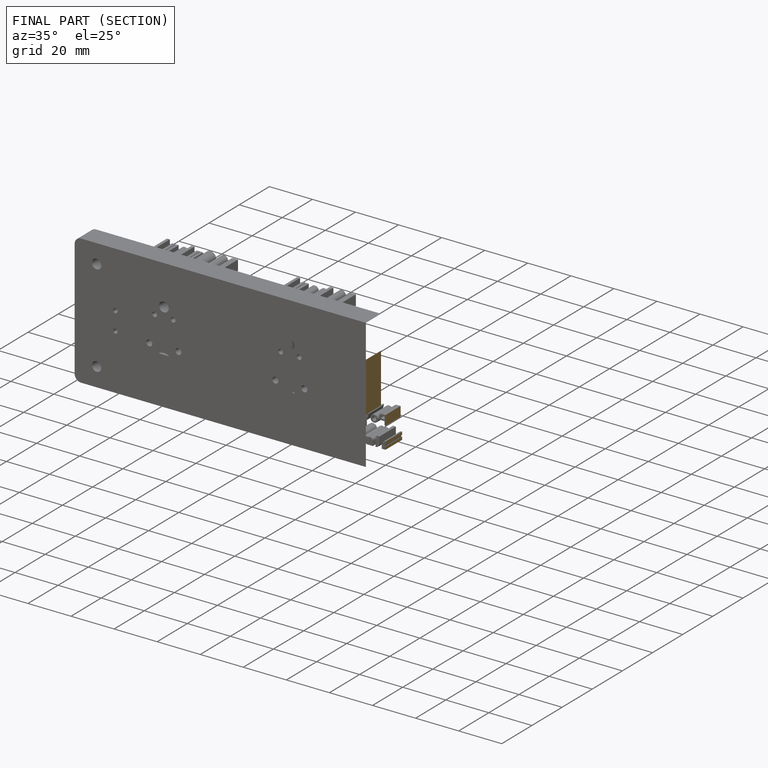
[diagram: finished part — half-section view (interior)]
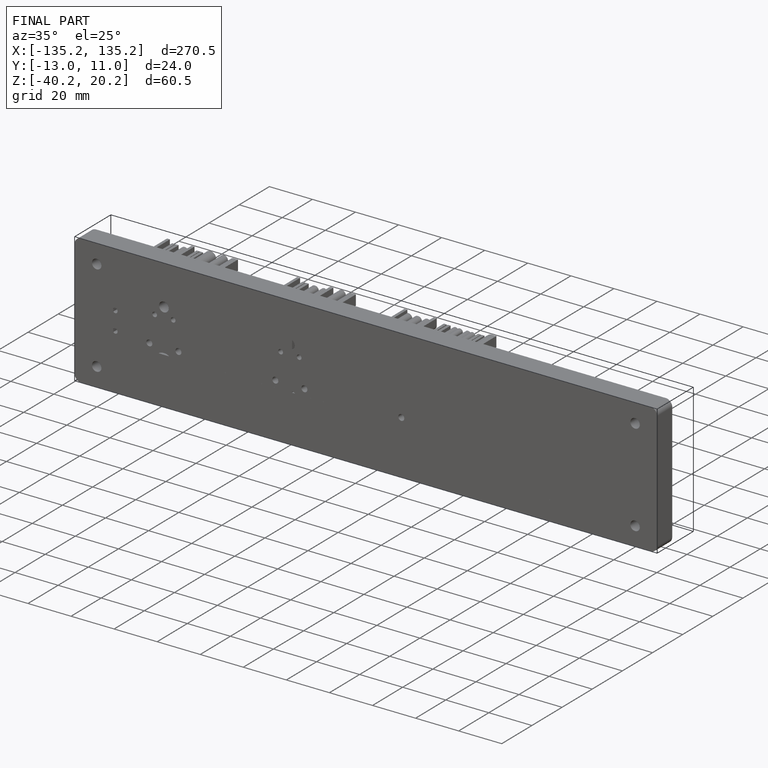
[diagram: finished part — iso view with bounding-box wireframe]
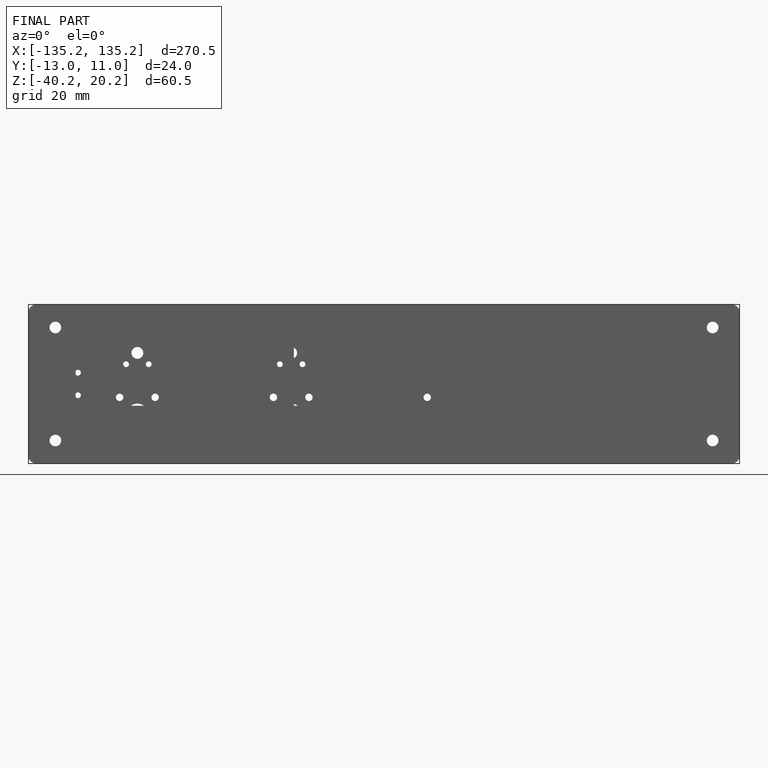
[diagram: finished part — front view with bounding-box wireframe]
